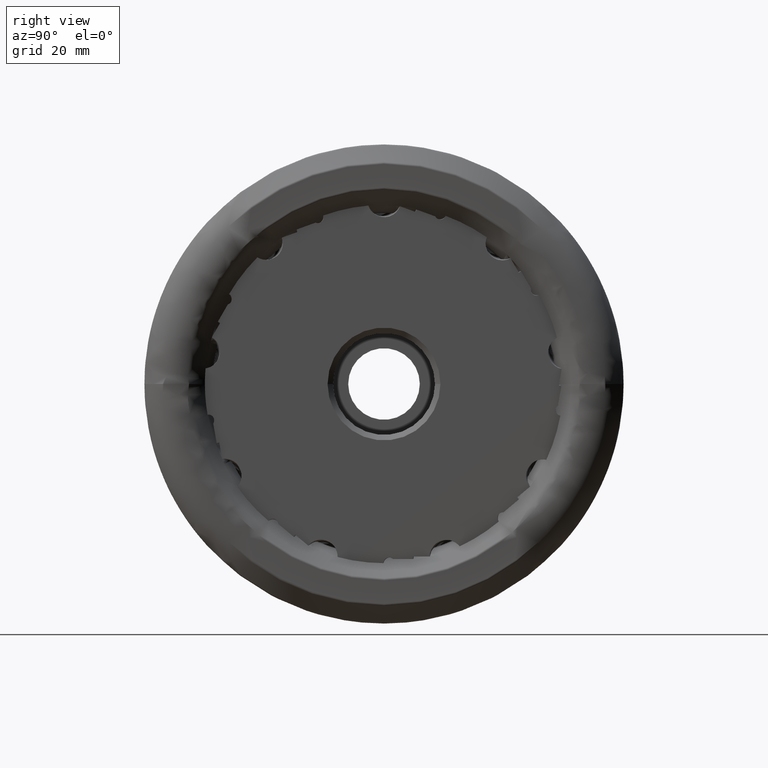
[diagram: clean part render]
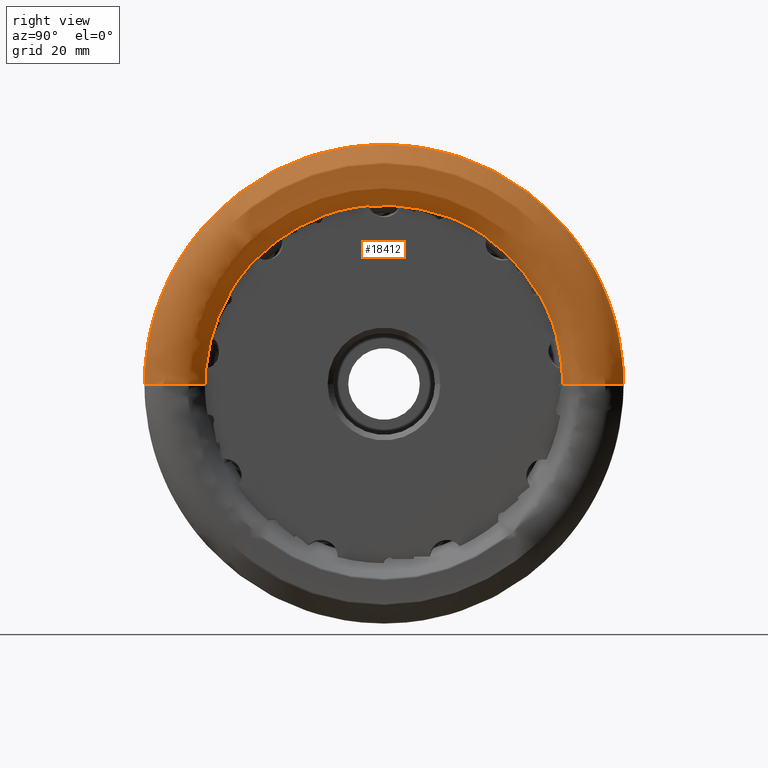
[diagram: same view with one face highlighted and labeled with its STEP entity id]
A machine part, right view. The second image highlights one B-rep face of the part: STEP entity #18412.
In plain terms, the highlighted face is a freeform B-spline surface patch.
Its self-contained STEP definition (entity closure, byte-faithful):
#58 = CARTESIAN_POINT ( 'NONE',  ( -0.3425565971943367300, -34.22765627130368700, 68.45531254260737300 ) ) ;
#119 = CARTESIAN_POINT ( 'NONE',  ( -1.999999999999984500, 28.20801936597163700, 16.20679299623406800 ) ) ;
#121 = CARTESIAN_POINT ( 'NONE',  ( 0.6273617613297940400, -35.18134563772342500, 4.308472232493469400E-015 ) ) ;
#183 = CARTESIAN_POINT ( 'NONE',  ( 0.7744025470913616900, 35.32856224612533700, 0.0000000000000000000 ) ) ;
#212 = CARTESIAN_POINT ( 'NONE',  ( -2.038731194971310100, 28.17095470113463300, 16.19074002391348400 ) ) ;
#236 = CARTESIAN_POINT ( 'NONE',  ( 0.6971025418866277900, -35.24027291815158200, 4.315688743029349700E-015 ) ) ;
#243 = CARTESIAN_POINT ( 'NONE',  ( 0.8748410095993783800, 35.50447672690388900, 71.00895345380777700 ) ) ;
#313 = CARTESIAN_POINT ( 'NONE',  ( 0.8902409107763181700, -35.88524155674949900, 4.394674620910285600E-015 ) ) ;
#319 = CARTESIAN_POINT ( 'NONE',  ( 0.8950534666787216500, -35.64549968031840900, 71.29099936063681800 ) ) ;
#345 = CARTESIAN_POINT ( 'NONE',  ( -2.089635244474794500, 31.33965276887315500, 8.374992956866142500 ) ) ;
#377 = CARTESIAN_POINT ( 'NONE',  ( 0.8622334513710749900, -40.14822626646228100, 4.916739678866672300E-015 ) ) ;
#383 = CARTESIAN_POINT ( 'NONE',  ( 0.8914007283192602000, -35.82530523205787200, 4.387334538091660500E-015 ) ) ;
#427 = CARTESIAN_POINT ( 'NONE',  ( -2.072742673859795400, -28.07916072246570800, 16.27921443983717600 ) ) ;
#438 = CARTESIAN_POINT ( 'NONE',  ( -2.110025155923067200, -43.19988429111771200, 5.290460002065333700E-015 ) ) ;
#441 = CARTESIAN_POINT ( 'NONE',  ( 0.8658913562654394500, 38.44419159169000000, 0.0000000000000000000 ) ) ;
#493 = CARTESIAN_POINT ( 'NONE',  ( -2.697354223220792800, -43.51506487925762200, 5.329058491907225200E-015 ) ) ;
#499 = CARTESIAN_POINT ( 'NONE',  ( 0.8913976264957274000, 39.79281486421245300, 79.58562972842490500 ) ) ;
#564 = CARTESIAN_POINT ( 'NONE',  ( 0.8950533737013487400, -39.97261854226231000, 79.94523708452462100 ) ) ;
#580 = CARTESIAN_POINT ( 'NONE',  ( -2.025809821165314600, -28.11775910616694300, 16.30966095891571800 ) ) ;
#617 = CARTESIAN_POINT ( 'NONE',  ( 0.8809929319947106300, -40.08978599666071600, 4.909582809931293300E-015 ) ) ;
#618 = CARTESIAN_POINT ( 'NONE',  ( -1.999999999999988000, -1.643265301445348600E-015, 0.0000000000000000000 ) ) ;
#671 = CARTESIAN_POINT ( 'NONE',  ( 0.7716495153471777400, 40.29295349552669600, 0.0000000000000000000 ) ) ;
#749 = CARTESIAN_POINT ( 'NONE',  ( 0.6965905795036246900, 40.37739374827624100, 80.75478749655246700 ) ) ;
#803 = CARTESIAN_POINT ( 'NONE',  ( 0.5626114132107819000, -40.50041419725702200, 81.00082839451404500 ) ) ;
#855 = CARTESIAN_POINT ( 'NONE',  ( -2.089635475235259900, -43.17872329128137900, 5.287868526993699900E-015 ) ) ;
#916 = CARTESIAN_POINT ( 'NONE',  ( -2.251095467296984500, 43.34972759883631700, 0.0000000000000000000 ) ) ;
#992 = CARTESIAN_POINT ( 'NONE',  ( -2.330384325982070700, 43.42032396826358100, 86.84064793652714800 ) ) ;
#1051 = CARTESIAN_POINT ( 'NONE',  ( -2.535585523551514300, -43.50393684313520700, 87.00787368627041500 ) ) ;
#1114 = CARTESIAN_POINT ( 'NONE',  ( -2.636894781143910300, -43.51090588646886200, 5.328549162186581600E-015 ) ) ;
#1163 = B_SPLINE_CURVE_WITH_KNOTS ( 'NONE', 3,
 ( #5781, #14474, #2915, #13079 ),
 .UNSPECIFIED., .F., .F.,
 ( 4, 4 ),
 ( 0.01081868763953014600, 0.01094905645055954000 ),
 .UNSPECIFIED. ) ;
#1180 = CARTESIAN_POINT ( 'NONE',  ( 0.8088077618842399700, 35.36785866382685800, 0.0000000000000000000 ) ) ;
#1185 = ORIENTED_EDGE ( 'NONE', *, *, #13041, .F. ) ;
#1186 = CARTESIAN_POINT ( 'NONE',  ( -2.879375407045864600, 43.50905910507066200, 0.0000000000000000000 ) ) ;
#1248 = CARTESIAN_POINT ( 'NONE',  ( 0.8896717424324739300, 39.70291102246406500, 0.0000000000000000000 ) ) ;
#1252 = CARTESIAN_POINT ( 'NONE',  ( -6.600182800473318100, 43.50905910507066900, 87.01811821014131000 ) ) ;
#1254 = CARTESIAN_POINT ( 'NONE',  ( -1.999999999999974500, -28.13950413160031500, 16.32546486325768600 ) ) ;
#1305 = CARTESIAN_POINT ( 'NONE',  ( 0.7569086806177236500, 40.30953672837306800, 0.0000000000000000000 ) ) ;
#1329 = CARTESIAN_POINT ( 'NONE',  ( -1.999999999999988000, -1.643265301445348600E-015, 0.0000000000000000000 ) ) ;
#1354 = CARTESIAN_POINT ( 'NONE',  ( -2.273042568966754800, 43.36926862544499500, 0.0000000000000000000 ) ) ;
#1424 = CARTESIAN_POINT ( 'NONE',  ( -4.119644538188351700, 43.50905910507066200, 0.0000000000000000000 ) ) ;
#1509 = CARTESIAN_POINT ( 'NONE',  ( 0.5626115288729876000, 35.11770401288064400, 0.0000000000000000000 ) ) ;
#1568 = ORIENTED_EDGE ( 'NONE', *, *, #14962, .F. ) ;
#1572 = CARTESIAN_POINT ( 'NONE',  ( 0.6971025418866194600, 35.24027291815158900, 70.48054583630316500 ) ) ;
#1641 = CARTESIAN_POINT ( 'NONE',  ( 0.7744025470913701300, -35.32856224612533000, 70.65712449225065900 ) ) ;
#1703 = CARTESIAN_POINT ( 'NONE',  ( 0.7569087880739295800, -35.30858149420567600, 4.324054130931245300E-015 ) ) ;
#1708 = CARTESIAN_POINT ( 'NONE',  ( 0.8748410095993868200, -35.50447672690388900, 4.348044377900454100E-015 ) ) ;
#1742 = CARTESIAN_POINT ( 'NONE',  ( -2.089635244474794500, 31.33965276887315500, 8.374992956866142500 ) ) ;
#1757 = CARTESIAN_POINT ( 'NONE',  ( 0.8658923428585633100, -37.17392750116473400, 4.552493132603715300E-015 ) ) ;
#1761 = CARTESIAN_POINT ( 'NONE',  ( 0.8965189022040472900, 35.67543760543051000, 0.0000000000000000000 ) ) ;
#1820 = CARTESIAN_POINT ( 'NONE',  ( 0.8007174062737574300, -40.26025252489405700, 4.930458938747564400E-015 ) ) ;
#1825 = CARTESIAN_POINT ( 'NONE',  ( 0.8902409107763096200, 35.88524155674950600, 71.77048311349898300 ) ) ;
#1890 = CARTESIAN_POINT ( 'NONE',  ( -2.207201263957437700, -43.31064554561897500, 5.304024343644784800E-015 ) ) ;
#1895 = CARTESIAN_POINT ( 'NONE',  ( 0.8658913562654483300, -38.44419159168999300, 76.88838318337998600 ) ) ;
#1943 = CARTESIAN_POINT ( 'NONE',  ( -2.849074246353296800, -43.50905910507066200, 5.328322996693779100E-015 ) ) ;
#1948 = CARTESIAN_POINT ( 'NONE',  ( 0.8913976264957367300, -39.79281486421245300, 4.873214335252100400E-015 ) ) ;
#2003 = CARTESIAN_POINT ( 'NONE',  ( 0.8942455312196737600, 39.99195400462953400, 0.0000000000000000000 ) ) ;
#2060 = CARTESIAN_POINT ( 'NONE',  ( 0.8622334513710655500, 40.14822626646227400, 80.29645253292454800 ) ) ;
#2062 = DIRECTION ( 'NONE',  ( -1.199768912937689300E-016, 1.000000000000000000, 0.0000000000000000000 ) ) ;
#2075 = VERTEX_POINT ( 'NONE', #13808 ) ;
#2102 = CARTESIAN_POINT ( 'NONE',  ( -2.038731194971308700, 11.17299622713306400, 30.51076706023307800 ) ) ;
#2129 = CARTESIAN_POINT ( 'NONE',  ( 0.7716495153471871800, -40.29295349552668200, 80.58590699105336300 ) ) ;
#2146 = CIRCLE ( 'NONE', #8287, 32.53233000837492700 ) ;
#2172 = VERTEX_POINT ( 'NONE', #11253 ) ;
#2188 = CARTESIAN_POINT ( 'NONE',  ( 0.6965905795036342300, -40.37739374827624100, 4.944804601173885100E-015 ) ) ;
#2249 = CARTESIAN_POINT ( 'NONE',  ( -0.3425567511056663000, 41.39046188606816700, 0.0000000000000000000 ) ) ;
#2273 = CARTESIAN_POINT ( 'NONE',  ( -1.999999999999986200, -11.06230423566089600, 30.59375623834855400 ) ) ;
#2317 = CARTESIAN_POINT ( 'NONE',  ( -2.110025155923077400, 43.19988429111771900, 86.39976858223542400 ) ) ;
#2382 = CARTESIAN_POINT ( 'NONE',  ( -2.251095467296973900, -43.34972759883630300, 86.69945519767262000 ) ) ;
#2395 = EDGE_CURVE ( 'NONE', #16055, #18662, #4927, .T. ) ;
#2415 = DIRECTION ( 'NONE',  ( 1.000000000000000000, 1.189832528889833900E-016, -0.0000000000000000000 ) ) ;
#2441 = CARTESIAN_POINT ( 'NONE',  ( -2.330384325982060000, -43.42032396826357400, 5.317456076567509400E-015 ) ) ;
#2501 = CARTESIAN_POINT ( 'NONE',  ( -2.583177188742688600, 43.50721066415531600, 0.0000000000000000000 ) ) ;
#2554 = VERTEX_POINT ( 'NONE', #6458 ) ;
#2575 = CARTESIAN_POINT ( 'NONE',  ( -2.089635244474799400, 32.43939491884978600, 0.0000000000000000000 ) ) ;
#2581 = CARTESIAN_POINT ( 'NONE',  ( -2.697354223220803400, 43.51506487925762200, 87.03012975851523000 ) ) ;
#2641 = CARTESIAN_POINT ( 'NONE',  ( 0.8748410095993783800, 35.50447672690388900, 0.0000000000000000000 ) ) ;
#2646 = CARTESIAN_POINT ( 'NONE',  ( -2.879375407045853900, -43.50905910507064800, 87.01811821014131000 ) ) ;
#2690 = CARTESIAN_POINT ( 'NONE',  ( 0.8913976264957272900, 39.79281486421245300, 0.0000000000000000000 ) ) ;
#2695 = CARTESIAN_POINT ( 'NONE',  ( -6.600182800473308300, -43.50905910507066200, 5.328322996693779100E-015 ) ) ;
#2724 = CARTESIAN_POINT ( 'NONE',  ( -2.059773777705824500, -2.813244645111443500, 32.34828660528005200 ) ) ;
#2759 = CARTESIAN_POINT ( 'NONE',  ( 0.6965905795036246900, 40.37739374827624100, 0.0000000000000000000 ) ) ;
#2787 = DIRECTION ( 'NONE',  ( -1.199768912937689300E-016, 1.000000000000000000, 0.0000000000000000000 ) ) ;
#2795 = CARTESIAN_POINT ( 'NONE',  ( -1.999999999999987600, -2.826588348131474400, 32.40930258558520200 ) ) ;
#2827 = CARTESIAN_POINT ( 'NONE',  ( -2.330384325982070200, 43.42032396826357400, 0.0000000000000000000 ) ) ;
#2879 = CARTESIAN_POINT ( 'NONE',  ( -6.600182800473320700, 43.50905910507066200, 0.0000000000000000000 ) ) ;
#2901 = CARTESIAN_POINT ( 'NONE',  ( -2.089635244474799900, 32.43939491884978600, 64.87878983769955700 ) ) ;
#2915 = CARTESIAN_POINT ( 'NONE',  ( -2.029895201833703800, -32.37659354296275900, 2.845153299718984600 ) ) ;
#2963 = CARTESIAN_POINT ( 'NONE',  ( 0.5626115288729959300, -35.11770401288063000, 70.23540802576125900 ) ) ;
#2969 = ORIENTED_EDGE ( 'NONE', *, *, #16468, .F. ) ;
#3040 = CARTESIAN_POINT ( 'NONE',  ( 0.6971025418866277900, -35.24027291815158200, 4.315688743029349700E-015 ) ) ;
#3098 = CARTESIAN_POINT ( 'NONE',  ( 0.8088077618842399700, 35.36785866382685800, 0.0000000000000000000 ) ) ;
#3121 = AXIS2_PLACEMENT_3D ( 'NONE', #5217, #15377, #6676 ) ;
#3155 = CARTESIAN_POINT ( 'NONE',  ( 0.8088077618842484100, -35.36785866382685800, 4.331313490535154500E-015 ) ) ;
#3159 = CARTESIAN_POINT ( 'NONE',  ( 0.8916085622985010500, 35.57512245281837700, 71.15024490563675400 ) ) ;
#3221 = CARTESIAN_POINT ( 'NONE',  ( 0.8896717424324833700, -39.70291102246406500, 4.862204290049278600E-015 ) ) ;
#3222 = ORIENTED_EDGE ( 'NONE', *, *, #7003, .F. ) ;
#3226 = CARTESIAN_POINT ( 'NONE',  ( 0.8965189022040557200, -35.67543760543050300, 71.35087521086100500 ) ) ;
#3255 = B_SPLINE_CURVE_WITH_KNOTS ( 'NONE', 3,
 ( #8508, #4113, #18555, #18617 ),
 .UNSPECIFIED., .F., .F.,
 ( 4, 4 ),
 ( 0.01081868763953015700, 0.01094905645055954500 ),
 .UNSPECIFIED. ) ;
#3284 = CARTESIAN_POINT ( 'NONE',  ( 0.7569086806177332000, -40.30953672837306800, 4.936494512951475600E-015 ) ) ;
#3290 = CARTESIAN_POINT ( 'NONE',  ( 0.8902409107763181700, -35.88524155674949900, 4.394674620910285600E-015 ) ) ;
#3325 = CIRCLE ( 'NONE', #18196, 32.43939491884978600 ) ;
#3338 = CARTESIAN_POINT ( 'NONE',  ( -2.273042568966744200, -43.36926862544499500, 5.311203600351294100E-015 ) ) ;
#3340 = CARTESIAN_POINT ( 'NONE',  ( 0.8896717424324739300, 39.70291102246406500, 0.0000000000000000000 ) ) ;
#3393 = CARTESIAN_POINT ( 'NONE',  ( -4.119644538188342000, -43.50905910507066200, 5.328322996693779100E-015 ) ) ;
#3399 = CARTESIAN_POINT ( 'NONE',  ( 0.8988070052786658600, 39.88277652014653500, 79.76555304029305700 ) ) ;
#3466 = CARTESIAN_POINT ( 'NONE',  ( 0.8942455312196834200, -39.99195400462952700, 79.98390800925905400 ) ) ;
#3528 = CARTESIAN_POINT ( 'NONE',  ( 0.8622334513710749900, -40.14822626646228100, 4.916739678866672300E-015 ) ) ;
#3563 = CARTESIAN_POINT ( 'NONE',  ( -2.012899418102992700, 11.18530733413676800, 30.53477084256406800 ) ) ;
#3587 = CARTESIAN_POINT ( 'NONE',  ( 0.7569086806177236500, 40.30953672837306800, 0.0000000000000000000 ) ) ;
#3643 = CARTESIAN_POINT ( 'NONE',  ( 0.6273616482469588400, 40.43677257640089100, 80.87354515280176800 ) ) ;
#3710 = CIRCLE ( 'NONE', #4902, 43.50905910507066200 ) ;
#3715 = CARTESIAN_POINT ( 'NONE',  ( -0.3425567511056563100, -41.39046188606816700, 82.78092377213633300 ) ) ;
#3743 = CARTESIAN_POINT ( 'NONE',  ( -2.055722841929558300, 28.15450983816364800, 16.18400302611467000 ) ) ;
#3770 = CARTESIAN_POINT ( 'NONE',  ( -2.110025155923067200, -43.19988429111771200, 5.290460002065333700E-015 ) ) ;
#3822 = CARTESIAN_POINT ( 'NONE',  ( -2.273042568966754800, 43.36926862544499500, 0.0000000000000000000 ) ) ;
#3897 = ORIENTED_EDGE ( 'NONE', *, *, #14168, .T. ) ;
#3900 = CARTESIAN_POINT ( 'NONE',  ( -2.396302976578862200, 43.45871664776806400, 86.91743329553611400 ) ) ;
#3903 = CARTESIAN_POINT ( 'NONE',  ( -1.999999999999984000, -32.40776437167052400, 2.844170213629036300 ) ) ;
#3970 = CARTESIAN_POINT ( 'NONE',  ( -2.583177188742678000, -43.50721066415530200, 87.01442132831061800 ) ) ;
#4031 = CARTESIAN_POINT ( 'NONE',  ( -2.697354223220792800, -43.51506487925762200, 5.329058491907225200E-015 ) ) ;
#4064 = VERTEX_POINT ( 'NONE', #1254 ) ;
#4085 = CARTESIAN_POINT ( 'NONE',  ( 0.8939151162407538200, 35.62224389760139300, 0.0000000000000000000 ) ) ;
#4090 = CARTESIAN_POINT ( 'NONE',  ( -4.119644538188350000, 43.50905910507066200, 0.0000000000000000000 ) ) ;
#4113 = CARTESIAN_POINT ( 'NONE',  ( -2.059773777705826300, 18.63800739694125500, 26.58854399928947000 ) ) ;
#4161 = CARTESIAN_POINT ( 'NONE',  ( 0.8963045842271156700, 39.94267120155706200, 0.0000000000000000000 ) ) ;
#4191 = CARTESIAN_POINT ( 'NONE',  ( -2.089635244474797200, 11.14689726363033600, 30.46409401402194600 ) ) ;
#4225 = CARTESIAN_POINT ( 'NONE',  ( 0.5841903276673668900, 40.47919575001563400, 0.0000000000000000000 ) ) ;
#4276 = CARTESIAN_POINT ( 'NONE',  ( -2.465053625587843500, 43.48641242322762000, 0.0000000000000000000 ) ) ;
#4365 = CARTESIAN_POINT ( 'NONE',  ( -2.089635244474791900, -32.43939491884978600, 3.972680115364630900E-015 ) ) ;
#4368 = DIRECTION ( 'NONE',  ( 1.000000000000000000, 1.189832528889833900E-016, -0.0000000000000000000 ) ) ;
#4426 = CARTESIAN_POINT ( 'NONE',  ( 0.5841904424794434100, 35.13892246144063600, 0.0000000000000000000 ) ) ;
#4483 = CARTESIAN_POINT ( 'NONE',  ( 0.7369733726781529900, 35.28581196885431100, 70.57162393770862300 ) ) ;
#4545 = CARTESIAN_POINT ( 'NONE',  ( 0.8088077618842483000, -35.36785866382685100, 70.73571732765370300 ) ) ;
#4620 = CARTESIAN_POINT ( 'NONE',  ( 0.8748410095993868200, -35.50447672690388900, 4.348044377900454100E-015 ) ) ;
#4628 = CARTESIAN_POINT ( 'NONE',  ( 0.8916085622985093800, -35.57512245281838400, 4.356695984111916900E-015 ) ) ;
#4688 = CARTESIAN_POINT ( 'NONE',  ( 0.8913976264957367300, -39.79281486421245300, 4.873214335252100400E-015 ) ) ;
#4692 = CARTESIAN_POINT ( 'NONE',  ( 0.8994497732547102100, 35.73531345565470500, 0.0000000000000000000 ) ) ;
#4719 = CARTESIAN_POINT ( 'NONE',  ( -2.029895201833721500, 31.39714577786021400, 8.399877603210233800 ) ) ;
#4746 = CARTESIAN_POINT ( 'NONE',  ( 0.6965905795036342300, -40.37739374827624100, 4.944804601173885100E-015 ) ) ;
#4749 = CARTESIAN_POINT ( 'NONE',  ( -1.999999999999986200, -11.06230423566089600, 30.59375623834855400 ) ) ;
#4750 = CARTESIAN_POINT ( 'NONE',  ( 0.8896746842772447200, 35.91520997760959900, 71.83041995521918500 ) ) ;
#4789 = CARTESIAN_POINT ( 'NONE',  ( -2.038731194971316300, -28.10706951734593400, 16.30139240808638900 ) ) ;
#4806 = CARTESIAN_POINT ( 'NONE',  ( -2.330384325982060000, -43.42032396826357400, 5.317456076567509400E-015 ) ) ;
#4812 = CARTESIAN_POINT ( 'NONE',  ( 0.8896717424324834800, -39.70291102246405800, 79.40582204492811500 ) ) ;
#4828 = CARTESIAN_POINT ( 'NONE',  ( -2.089635244474794100, -11.04292346571706700, 30.50193738160598400 ) ) ;
#4847 = ORIENTED_EDGE ( 'NONE', *, *, #10355, .F. ) ;
#4875 = CARTESIAN_POINT ( 'NONE',  ( -6.600182800473310100, -43.50905910507066200, 5.328322996692986200E-015 ) ) ;
#4880 = CARTESIAN_POINT ( 'NONE',  ( 0.8988070052786753000, -39.88277652014653500, 4.884231460650667300E-015 ) ) ;
#4902 = AXIS2_PLACEMENT_3D ( 'NONE', #13062, #4368, #14516 ) ;
#4927 =( BOUNDED_CURVE ( )  B_SPLINE_CURVE ( 3, ( #16158, #5943, #8870, #7464, #17615, #8947, #236, #10414, #1703, #11861, #3155, #13305, #4620, #14758, #6068, #16230, #7536, #17673, #9005, #313, #10468, #1757, #11929, #3221, #13351, #4688, #14838, #6128, #16283, #7607, #17735, #9059, #377, #10545, #1820, #11990, #3284, #13420, #4746, #14900, #6202, #16342, #7664, #17807, #9117, #438, #10608, #1890, #12044, #3338, #13495, #4806, #14951, #6262, #16412, #7719, #17869, #9187, #493, #10654, #1943, #12111, #3393, #13547, #4875 ),
 .UNSPECIFIED., .F., .F. ) 
 B_SPLINE_CURVE_WITH_KNOTS ( ( 4, 3, 1, 1, 3, 1, 1, 1, 1, 3, 1, 1, 3, 3, 1, 1, 3, 1, 1, 1, 1, 1, 3, 1, 1, 3, 3, 1, 1, 3, 1, 1, 1, 1, 3, 1, 1, 3, 4 ),
 ( 0.003710546787526763700, 0.1060619786133414300, 0.1086058762416542000, 0.1111497738699669500, 0.1136936714982797200, 0.1159259967943046700, 0.1180840161475199800, 0.1201745223561953200, 0.1222049872324844100, 0.1241835642292966100, 0.1267306507187038700, 0.1292777372081111400, 0.1318248236975184100, 0.2381579369554293300, 0.2407049939784723600, 0.2432520510015154000, 0.2457991080245584300, 0.2474436121460063500, 0.2491231706691761900, 0.2508425962174883300, 0.2526063746967598400, 0.2544186622806928200, 0.2562832903933666100, 0.2588265843362282400, 0.2613698782790899200, 0.2639131722219515400, 0.3699499818578342900, 0.3724863861298187700, 0.3750227904018033100, 0.3775591946737877900, 0.3797929535507995100, 0.3819523644748831800, 0.3840442238925341200, 0.3860760075735312800, 0.3880558732360107600, 0.3906040303570157400, 0.3931521874780206600, 0.3957003445990256400, 0.5000000000000001100 ),
 .UNSPECIFIED. ) 
 CURVE ( )  GEOMETRIC_REPRESENTATION_ITEM ( )  RATIONAL_B_SPLINE_CURVE ( ( 0.9993862869339624800, 0.9939479869151270900, 0.9941525579371396400, 1.000000000000000000, 1.000000000000000000, 1.000000000000000000, 1.000000000000000000, 1.000000000000000000, 1.000000000000000000, 1.000000000000000000, 1.000000000000000000, 1.000000000000000000, 1.000000000000000000, 1.000000000000000000, 1.000000000000000000, 1.000000000000000000, 1.000000000000000000, 1.000000000000000000, 1.000000000000000000, 1.000000000000000000, 1.000000000000000000, 0.9939405706016597500, 0.9939405706016597500, 1.000000000000000000, 1.000000000000000000, 1.000000000000000000, 1.000000000000000000, 1.000000000000000000, 1.000000000000000000, 1.000000000000000000, 1.000000000000000000, 1.000000000000000000, 1.000000000000000000, 1.000000000000000000, 1.000000000000000000, 1.000000000000000000, 1.000000000000000000, 1.000000000000000000, 1.000000000000000000, 1.000000000000000000, 1.000000000000000000, 1.000000000000000000, 0.9939405706012081100, 0.9939405706012081100, 1.000000000000000000, 1.000000000000000000, 1.000000000000000000, 1.000000000000000000, 1.000000000000000000, 1.000000000000000000, 1.000000000000000000, 1.000000000000000000, 1.000000000000000000, 1.000000000000000000, 1.000000000000000000, 1.000000000000000000, 1.000000000000000000, 1.000000000000000000, 1.000000000000000000, 1.000000000000000000, 1.000000000000000000, 1.000000000000000000, 1.000000000000000000, 1.000000000000000000, 1.000000000000000000 ) ) 
 REPRESENTATION_ITEM ( '' )  );
#4931 = CARTESIAN_POINT ( 'NONE',  ( 0.8926126262113982500, 40.03103708586542100, 0.0000000000000000000 ) ) ;
#4983 = CARTESIAN_POINT ( 'NONE',  ( 0.8352750921835769800, 40.20524495306236900, 80.41048990612471000 ) ) ;
#5049 = ORIENTED_EDGE ( 'NONE', *, *, #8261, .T. ) ;
#5059 = CARTESIAN_POINT ( 'NONE',  ( 0.7569086806177332000, -40.30953672837306100, 80.61907345674612200 ) ) ;
#5114 = CARTESIAN_POINT ( 'NONE',  ( -2.089635244474795900, -1.653930394406460400E-015, 0.0000000000000000000 ) ) ;
#5121 = CARTESIAN_POINT ( 'NONE',  ( 0.6273616482469685000, -40.43677257640089800, 4.952076410353882700E-015 ) ) ;
#5171 = CARTESIAN_POINT ( 'NONE',  ( -1.232028739973092300, 42.28867423841042200, 0.0000000000000000000 ) ) ;
#5217 = CARTESIAN_POINT ( 'NONE',  ( -1.999999999999988000, -1.643265301445348600E-015, 0.0000000000000000000 ) ) ;
#5231 = CARTESIAN_POINT ( 'NONE',  ( -2.150790362202490400, 43.24221992993285800, 86.48443985986570200 ) ) ;
#5286 = VERTEX_POINT ( 'NONE', #16952 ) ;
#5306 = CARTESIAN_POINT ( 'NONE',  ( -2.273042568966744200, -43.36926862544498800, 86.73853725088997600 ) ) ;
#5351 = CARTESIAN_POINT ( 'NONE',  ( -2.089635244474795900, -1.653930394406460400E-015, 0.0000000000000000000 ) ) ;
#5363 = CARTESIAN_POINT ( 'NONE',  ( -2.396302976578851500, -43.45871664776806400, 5.322157823774095200E-015 ) ) ;
#5365 = CARTESIAN_POINT ( 'NONE',  ( -2.089635244474792800, 18.62422514898794600, 26.56035730747802900 ) ) ;
#5407 = CIRCLE ( 'NONE', #7983, 32.43939491884978600 ) ;
#5422 = CARTESIAN_POINT ( 'NONE',  ( -2.606665060105479300, 43.50882639007447500, 0.0000000000000000000 ) ) ;
#5461 = B_SPLINE_CURVE_WITH_KNOTS ( 'NONE', 3,
 ( #12903, #5654, #8586, #18711 ),
 .UNSPECIFIED., .F., .F.,
 ( 4, 4 ),
 ( 0.01081868763953010300, 0.01094905645055949100 ),
 .UNSPECIFIED. ) ;
#5491 = CARTESIAN_POINT ( 'NONE',  ( 0.5626115288729876000, 35.11770401288064400, 0.0000000000000000000 ) ) ;
#5496 = CARTESIAN_POINT ( 'NONE',  ( -2.788471924968190900, 43.50905910507066900, 87.01811821014131000 ) ) ;
#5556 = CARTESIAN_POINT ( 'NONE',  ( 0.8965189022040472900, 35.67543760543051000, 0.0000000000000000000 ) ) ;
#5561 = CARTESIAN_POINT ( 'NONE',  ( -4.119644538188340200, -43.50905910507064800, 87.01811821014131000 ) ) ;
#5610 = CARTESIAN_POINT ( 'NONE',  ( 0.8942455312196737600, 39.99195400462953400, 0.0000000000000000000 ) ) ;
#5635 = CARTESIAN_POINT ( 'NONE',  ( -2.055722841929547700, 11.16472918994784200, 30.49503566634526000 ) ) ;
#5646 = EDGE_CURVE ( 'NONE', #2172, #2075, #7948, .T. ) ;
#5654 = CARTESIAN_POINT ( 'NONE',  ( -2.059773777705821800, -22.94814825198495000, 22.97190639750017400 ) ) ;
#5666 = CARTESIAN_POINT ( 'NONE',  ( -0.3425567511056662500, 41.39046188606817400, 0.0000000000000000000 ) ) ;
#5731 = CARTESIAN_POINT ( 'NONE',  ( -2.583177188742688600, 43.50721066415531600, 0.0000000000000000000 ) ) ;
#5755 = EDGE_CURVE ( 'NONE', #13189, #18795, #2146, .T. ) ;
#5764 = CARTESIAN_POINT ( 'NONE',  ( -6.600182800473320700, 43.50905910507066200, 0.0000000000000000000 ) ) ;
#5781 = CARTESIAN_POINT ( 'NONE',  ( -2.089635244474786500, -32.31405673636161400, 2.848873451085415000 ) ) ;
#5817 = CARTESIAN_POINT ( 'NONE',  ( -1.232028547461792900, 33.32944391895925700, 66.65888783791849900 ) ) ;
#5876 = CARTESIAN_POINT ( 'NONE',  ( 0.5841904424794518400, -35.13892246144063600, 70.27784492288127200 ) ) ;
#5943 = CARTESIAN_POINT ( 'NONE',  ( -1.169760586863880500, -33.39229418442511100, 4.089376618914298600E-015 ) ) ;
#5950 = CARTESIAN_POINT ( 'NONE',  ( 0.7369733726781612100, -35.28581196885431800, 4.321265668297280100E-015 ) ) ;
#6013 = CARTESIAN_POINT ( 'NONE',  ( 0.8474201272238314200, 35.43504103711789800, 0.0000000000000000000 ) ) ;
#6058 = CARTESIAN_POINT ( 'NONE',  ( -2.089635244474797200, 11.14689726363033600, 30.46409401402194600 ) ) ;
#6068 = CARTESIAN_POINT ( 'NONE',  ( 0.8939151162407622500, -35.62224389760139300, 4.362466696764388300E-015 ) ) ;
#6071 = CARTESIAN_POINT ( 'NONE',  ( 0.8939151162407538200, 35.62224389760139300, 71.24448779520277200 ) ) ;
#6128 = CARTESIAN_POINT ( 'NONE',  ( 0.8963045842271252200, -39.94267120155706200, 4.891566443638201800E-015 ) ) ;
#6134 = CARTESIAN_POINT ( 'NONE',  ( 0.8994497732547187500, -35.73531345565470500, 71.47062691130940900 ) ) ;
#6202 = CARTESIAN_POINT ( 'NONE',  ( 0.5841903276673765500, -40.47919575001563400, 4.957271750731579200E-015 ) ) ;
#6207 = CARTESIAN_POINT ( 'NONE',  ( 0.8896746842772533800, -35.91520997760959900, 4.398344693978468100E-015 ) ) ;
#6262 = CARTESIAN_POINT ( 'NONE',  ( -2.465053625587832800, -43.48641242322762000, 5.325549578050740500E-015 ) ) ;
#6264 = CARTESIAN_POINT ( 'NONE',  ( 0.8902379158296092100, 39.73287914203772400, 0.0000000000000000000 ) ) ;
#6317 = CARTESIAN_POINT ( 'NONE',  ( 0.8963045842271156700, 39.94267120155706200, 79.88534240311410900 ) ) ;
#6370 = CARTESIAN_POINT ( 'NONE',  ( 0.8926126262114078000, -40.03103708586540700, 80.06207417173081400 ) ) ;
#6374 = CARTESIAN_POINT ( 'NONE',  ( -1.999999999999988000, -1.643265301445348600E-015, 0.0000000000000000000 ) ) ;
#6375 = EDGE_CURVE ( 'NONE', #7136, #13924, #3255, .T. ) ;
#6378 = VERTEX_POINT ( 'NONE', #11442 ) ;
#6397 = CARTESIAN_POINT ( 'NONE',  ( -2.038731194971316300, -28.10706951734593400, 16.30139240808638900 ) ) ;
#6444 = CARTESIAN_POINT ( 'NONE',  ( 0.8352750921835865300, -40.20524495306236900, 4.923722454070309900E-015 ) ) ;
#6458 = CARTESIAN_POINT ( 'NONE',  ( -1.999999999999991800, 31.42610054033530200, 8.411462453256811900 ) ) ;
#6502 = CARTESIAN_POINT ( 'NONE',  ( 0.7368026469130271000, 40.33215573500746800, 0.0000000000000000000 ) ) ;
#6530 = CARTESIAN_POINT ( 'NONE',  ( -2.089635244474795900, -1.653930394406460400E-015, 0.0000000000000000000 ) ) ;
#6553 = DIRECTION ( 'NONE',  ( -1.203206111184212700E-016, 1.000000000000000000, 0.0000000000000000000 ) ) ;
#6557 = CARTESIAN_POINT ( 'NONE',  ( 0.5841903276673670000, 40.47919575001563400, 80.95839150003125400 ) ) ;
#6586 = CARTESIAN_POINT ( 'NONE',  ( -2.072742673859799800, 28.13779361978638600, 16.17765928268279300 ) ) ;
#6609 = EDGE_CURVE ( 'NONE', #17122, #4064, #13863, .T. ) ;
#6622 = CARTESIAN_POINT ( 'NONE',  ( -1.232028739973082500, -42.28867423841042200, 84.57734847682084500 ) ) ;
#6634 = ORIENTED_EDGE ( 'NONE', *, *, #16704, .T. ) ;
#6676 = DIRECTION ( 'NONE',  ( -1.199768912937689300E-016, 1.000000000000000000, 0.0000000000000000000 ) ) ;
#6690 = CARTESIAN_POINT ( 'NONE',  ( -2.150790362202479800, -43.24221992993285800, 5.295644622521815700E-015 ) ) ;
#6746 = CARTESIAN_POINT ( 'NONE',  ( -2.292370928298515900, 43.38647800414506900, 0.0000000000000000000 ) ) ;
#6791 = DIRECTION ( 'NONE',  ( -1.203206111184212700E-016, 1.000000000000000000, 0.0000000000000000000 ) ) ;
#6805 = CARTESIAN_POINT ( 'NONE',  ( -2.465053625587843000, 43.48641242322762000, 86.97282484645522500 ) ) ;
#6821 = EDGE_CURVE ( 'NONE', #18410, #18662, #3710, .T. ) ;
#6886 = CARTESIAN_POINT ( 'NONE',  ( -2.606665060105469100, -43.50882639007446100, 87.01765278014893600 ) ) ;
#6905 = B_SPLINE_CURVE_WITH_KNOTS ( 'NONE', 3,
 ( #4828, #13511, #16427, #7735 ),
 .UNSPECIFIED., .F., .F.,
 ( 4, 4 ),
 ( 0.002827040793772204100, 0.002900448247621865600 ),
 .UNSPECIFIED. ) ;
#6953 = CARTESIAN_POINT ( 'NONE',  ( 0.6273617613297857200, 35.18134563772342500, 0.0000000000000000000 ) ) ;
#6957 = CARTESIAN_POINT ( 'NONE',  ( -2.788471924968180600, -43.50905910507066200, 5.328322996693779100E-015 ) ) ;
#7003 = EDGE_CURVE ( 'NONE', #2554, #13257, #9818, .T. ) ;
#7011 = CARTESIAN_POINT ( 'NONE',  ( 0.8914007283192516600, 35.82530523205787200, 0.0000000000000000000 ) ) ;
#7016 = CARTESIAN_POINT ( 'NONE',  ( -5.359913669330834000, 43.50905910507066200, 0.0000000000000000000 ) ) ;
#7033 = B_SPLINE_CURVE_WITH_KNOTS ( 'NONE', 3,
 ( #13115, #16033, #8808, #119 ),
 .UNSPECIFIED., .F., .F.,
 ( 4, 4 ),
 ( 0.002900448247621917700, 0.002956271273704582300 ),
 .UNSPECIFIED. ) ;
#7073 = CARTESIAN_POINT ( 'NONE',  ( 0.8809929319947010800, 40.08978599666071600, 0.0000000000000000000 ) ) ;
#7127 = VERTEX_POINT ( 'NONE', #3903 ) ;
#7136 = VERTEX_POINT ( 'NONE', #5365 ) ;
#7139 = CARTESIAN_POINT ( 'NONE',  ( -2.089635475235270200, 43.17872329128137900, 0.0000000000000000000 ) ) ;
#7194 = CARTESIAN_POINT ( 'NONE',  ( -2.636894781143920500, 43.51090588646886200, 0.0000000000000000000 ) ) ;
#7218 = CARTESIAN_POINT ( 'NONE',  ( -2.089635244474799400, 32.43939491884978600, 0.0000000000000000000 ) ) ;
#7281 = CARTESIAN_POINT ( 'NONE',  ( -1.232028547461784900, -33.32944391895925700, 4.081679681271467600E-015 ) ) ;
#7352 = CARTESIAN_POINT ( 'NONE',  ( 0.6273617613297857200, 35.18134563772342500, 0.0000000000000000000 ) ) ;
#7412 = CARTESIAN_POINT ( 'NONE',  ( 0.7569087880739212600, 35.30858149420567600, 70.61716298841133700 ) ) ;
#7448 = CARTESIAN_POINT ( 'NONE',  ( -2.089635244474795900, -1.653930394406460400E-015, 0.0000000000000000000 ) ) ;
#7464 = CARTESIAN_POINT ( 'NONE',  ( 0.5626115288729959300, -35.11770401288064400, 4.300678381277844000E-015 ) ) ;
#7470 = CARTESIAN_POINT ( 'NONE',  ( 0.8474201272238399700, -35.43504103711789100, 70.87008207423578200 ) ) ;
#7536 = CARTESIAN_POINT ( 'NONE',  ( 0.8965189022040557200, -35.67543760543051000, 4.368981047167158700E-015 ) ) ;
#7542 = CARTESIAN_POINT ( 'NONE',  ( 0.8939151162407622500, -35.62224389760139300, 4.362466696764388300E-015 ) ) ;
#7607 = CARTESIAN_POINT ( 'NONE',  ( 0.8942455312196833100, -39.99195400462953400, 4.897601846341773700E-015 ) ) ;
#7610 = CARTESIAN_POINT ( 'NONE',  ( -2.038731194971305600, -11.05293135556547500, 30.55446709966467700 ) ) ;
#7612 = CARTESIAN_POINT ( 'NONE',  ( 0.8914007283192516600, 35.82530523205787200, 0.0000000000000000000 ) ) ;
#7664 = CARTESIAN_POINT ( 'NONE',  ( -0.3425567511056564200, -41.39046188606817400, 5.068869666400390500E-015 ) ) ;
#7667 = CARTESIAN_POINT ( 'NONE',  ( 0.8658923428585544300, 37.17392750116473400, 74.34785500232943900 ) ) ;
#7693 = CARTESIAN_POINT ( 'NONE',  ( -2.089635244474795900, -1.653930394406460400E-015, 0.0000000000000000000 ) ) ;
#7719 = CARTESIAN_POINT ( 'NONE',  ( -2.583177188742678000, -43.50721066415531600, 5.328096627968739700E-015 ) ) ;
#7725 = CARTESIAN_POINT ( 'NONE',  ( 0.8902379158296187500, -39.73287914203772400, 79.46575828407544900 ) ) ;
#7735 = CARTESIAN_POINT ( 'NONE',  ( -2.038731194971305600, -11.05293135556547500, 30.55446709966467700 ) ) ;
#7798 = CARTESIAN_POINT ( 'NONE',  ( 0.8963045842271252200, -39.94267120155706200, 4.891566443638201800E-015 ) ) ;
#7827 = EDGE_CURVE ( 'NONE', #13924, #2075, #17502, .T. ) ;
#7851 = CARTESIAN_POINT ( 'NONE',  ( 0.8809929319947010800, 40.08978599666071600, 0.0000000000000000000 ) ) ;
#7855 = DIRECTION ( 'NONE',  ( -1.199768912937689300E-016, 1.000000000000000000, 0.0000000000000000000 ) ) ;
#7873 = CARTESIAN_POINT ( 'NONE',  ( -2.012899418102982000, -28.12857082699087400, 16.31768469477068700 ) ) ;
#7908 = CARTESIAN_POINT ( 'NONE',  ( 0.8007174062737478800, 40.26025252489405700, 80.52050504978808500 ) ) ;
#7948 = B_SPLINE_CURVE_WITH_KNOTS ( 'NONE', 3,
 ( #2102, #9345, #3563, #13711 ),
 .UNSPECIFIED., .F., .F.,
 ( 4, 4 ),
 ( 0.002900448247621838700, 0.002956271273704494300 ),
 .UNSPECIFIED. ) ;
#7970 = CARTESIAN_POINT ( 'NONE',  ( 0.7368026469130367600, -40.33215573500746100, 80.66431147001492300 ) ) ;
#7983 = AXIS2_PLACEMENT_3D ( 'NONE', #5351, #15504, #6791 ) ;
#8013 = DIRECTION ( 'NONE',  ( -1.203206111184212700E-016, 1.000000000000000000, 0.0000000000000000000 ) ) ;
#8038 = CARTESIAN_POINT ( 'NONE',  ( 0.5841903276673765500, -40.47919575001563400, 4.957271750731579200E-015 ) ) ;
#8098 = CARTESIAN_POINT ( 'NONE',  ( -2.089635475235270200, 43.17872329128137900, 0.0000000000000000000 ) ) ;
#8151 = CARTESIAN_POINT ( 'NONE',  ( -2.089635244474786500, -32.31405673636161400, 2.848873451085415000 ) ) ;
#8156 = CARTESIAN_POINT ( 'NONE',  ( -2.207201263957448300, 43.31064554561897500, 86.62129109123795000 ) ) ;
#8166 = EDGE_CURVE ( 'NONE', #12121, #8925, #14323, .T. ) ;
#8225 = CARTESIAN_POINT ( 'NONE',  ( -2.292370928298505600, -43.38647800414505400, 86.77295600829012300 ) ) ;
#8261 = EDGE_CURVE ( 'NONE', #17301, #17122, #11015, .T. ) ;
#8287 = AXIS2_PLACEMENT_3D ( 'NONE', #11137, #2415, #12567 ) ;
#8294 = CARTESIAN_POINT ( 'NONE',  ( -2.465053625587832800, -43.48641242322762000, 5.325549578050740500E-015 ) ) ;
#8317 = AXIS2_PLACEMENT_3D ( 'NONE', #7448, #17601, #8931 ) ;
#8357 = CARTESIAN_POINT ( 'NONE',  ( -2.636894781143920500, 43.51090588646886200, 0.0000000000000000000 ) ) ;
#8410 = CARTESIAN_POINT ( 'NONE',  ( 0.7369733726781528800, 35.28581196885431800, 0.0000000000000000000 ) ) ;
#8413 = CARTESIAN_POINT ( 'NONE',  ( -2.849074246353307400, 43.50905910507066900, 87.01811821014131000 ) ) ;
#8484 = CARTESIAN_POINT ( 'NONE',  ( 0.8896746842772448300, 35.91520997760959900, 0.0000000000000000000 ) ) ;
#8490 = CARTESIAN_POINT ( 'NONE',  ( -5.359913669330823400, -43.50905910507064800, 87.01811821014131000 ) ) ;
#8508 = CARTESIAN_POINT ( 'NONE',  ( -2.089635244474792800, 18.62422514898794600, 26.56035730747802900 ) ) ;
#8542 = CARTESIAN_POINT ( 'NONE',  ( 0.8352750921835769800, 40.20524495306236900, 0.0000000000000000000 ) ) ;
#8586 = CARTESIAN_POINT ( 'NONE',  ( -2.029895201833713100, -22.97308028199021400, 22.99078704834505500 ) ) ;
#8593 = CARTESIAN_POINT ( 'NONE',  ( -2.150790362202490400, 43.24221992993285800, 0.0000000000000000000 ) ) ;
#8656 = CARTESIAN_POINT ( 'NONE',  ( -2.788471924968190900, 43.50905910507066200, 0.0000000000000000000 ) ) ;
#8751 = CARTESIAN_POINT ( 'NONE',  ( -0.3425565971943449500, 34.22765627130369400, 68.45531254260737300 ) ) ;
#8808 = CARTESIAN_POINT ( 'NONE',  ( -2.012899418102995300, 28.19581489011144600, 16.20121456093847100 ) ) ;
#8809 = CARTESIAN_POINT ( 'NONE',  ( 0.6273617613297940400, -35.18134563772341700, 70.36269127544683500 ) ) ;
#8870 = CARTESIAN_POINT ( 'NONE',  ( -0.3107032991126766300, -34.25897747584338800, 4.195514710785286700E-015 ) ) ;
#8877 = CARTESIAN_POINT ( 'NONE',  ( 0.7569087880739295800, -35.30858149420567600, 4.324054130931245300E-015 ) ) ;
#8882 = ORIENTED_EDGE ( 'NONE', *, *, #10409, .T. ) ;
#8886 = VERTEX_POINT ( 'NONE', #8151 ) ;
#8918 = B_SPLINE_CURVE_WITH_KNOTS ( 'NONE', 3,
 ( #4191, #12887, #5635, #15806 ),
 .UNSPECIFIED., .F., .F.,
 ( 4, 4 ),
 ( 0.002827040793772184100, 0.002900448247621838700 ),
 .UNSPECIFIED. ) ;
#8925 = VERTEX_POINT ( 'NONE', #18472 ) ;
#8931 = DIRECTION ( 'NONE',  ( -1.203206111184212700E-016, 1.000000000000000000, 0.0000000000000000000 ) ) ;
#8947 = CARTESIAN_POINT ( 'NONE',  ( 0.6273617613297940400, -35.18134563772342500, 4.308472232493469400E-015 ) ) ;
#8951 = CARTESIAN_POINT ( 'NONE',  ( 0.8748410095993783800, 35.50447672690388900, 0.0000000000000000000 ) ) ;
#9005 = CARTESIAN_POINT ( 'NONE',  ( 0.8914007283192602000, -35.82530523205787200, 4.387334538091660500E-015 ) ) ;
#9010 = CARTESIAN_POINT ( 'NONE',  ( 0.8950534666787132200, 35.64549968031840900, 71.29099936063681800 ) ) ;
#9033 = CARTESIAN_POINT ( 'NONE',  ( -2.059773777705827100, 31.36832863958592600, 8.387726157280191300 ) ) ;
#9059 = CARTESIAN_POINT ( 'NONE',  ( 0.8809929319947106300, -40.08978599666071600, 4.909582809931293300E-015 ) ) ;
#9064 = CARTESIAN_POINT ( 'NONE',  ( 0.8914007283192602000, -35.82530523205787200, 71.65061046411574400 ) ) ;
#9101 = VERTEX_POINT ( 'NONE', #1742 ) ;
#9117 = CARTESIAN_POINT ( 'NONE',  ( -2.089635475235259900, -43.17872329128137900, 5.287868526993699900E-015 ) ) ;
#9126 = CARTESIAN_POINT ( 'NONE',  ( 0.8658923428585632000, -37.17392750116472700, 4.552493132603716100E-015 ) ) ;
#9155 = VERTEX_POINT ( 'NONE', #13659 ) ;
#9162 = DIRECTION ( 'NONE',  ( -1.203206111184212700E-016, 1.000000000000000000, 0.0000000000000000000 ) ) ;
#9187 = CARTESIAN_POINT ( 'NONE',  ( -2.636894781143910300, -43.51090588646886200, 5.328549162186581600E-015 ) ) ;
#9190 = CARTESIAN_POINT ( 'NONE',  ( 0.8913976264957272900, 39.79281486421245300, 0.0000000000000000000 ) ) ;
#9250 = CARTESIAN_POINT ( 'NONE',  ( 0.8950533737013390800, 39.97261854226231700, 79.94523708452462100 ) ) ;
#9305 = CARTESIAN_POINT ( 'NONE',  ( 0.8809929319947107400, -40.08978599666070900, 80.17957199332141700 ) ) ;
#9343 = ORIENTED_EDGE ( 'NONE', *, *, #2395, .F. ) ;
#9345 = CARTESIAN_POINT ( 'NONE',  ( -2.025809821165316400, 11.17928293247719300, 30.52273006896398000 ) ) ;
#9379 = CARTESIAN_POINT ( 'NONE',  ( 0.8007174062737574300, -40.26025252489405700, 4.930458938747564400E-015 ) ) ;
#9429 = CARTESIAN_POINT ( 'NONE',  ( -2.089635244474799400, 32.43939491884978600, 0.0000000000000000000 ) ) ;
#9433 = CARTESIAN_POINT ( 'NONE',  ( 0.6965905795036246900, 40.37739374827624100, 0.0000000000000000000 ) ) ;
#9490 = CARTESIAN_POINT ( 'NONE',  ( 0.5626114132107722400, 40.50041419725703000, 81.00082839451404500 ) ) ;
#9542 = CARTESIAN_POINT ( 'NONE',  ( -2.089635475235259900, -43.17872329128135800, 86.35744658256274400 ) ) ;
#9622 = CARTESIAN_POINT ( 'NONE',  ( -2.207201263957437700, -43.31064554561897500, 5.304024343644784800E-015 ) ) ;
#9681 = CARTESIAN_POINT ( 'NONE',  ( -2.330384325982070200, 43.42032396826357400, 0.0000000000000000000 ) ) ;
#9734 = CARTESIAN_POINT ( 'NONE',  ( -2.535585523551524600, 43.50393684313521400, 87.00787368627041500 ) ) ;
#9810 = CARTESIAN_POINT ( 'NONE',  ( -2.636894781143910300, -43.51090588646884800, 87.02181177293771000 ) ) ;
#9818 = CIRCLE ( 'NONE', #17524, 32.53233000837492700 ) ;
#9872 = CARTESIAN_POINT ( 'NONE',  ( 0.7744025470913616900, 35.32856224612533700, 0.0000000000000000000 ) ) ;
#9879 = CARTESIAN_POINT ( 'NONE',  ( -2.849074246353296800, -43.50905910507066200, 5.328322996693779100E-015 ) ) ;
#9934 = CARTESIAN_POINT ( 'NONE',  ( 0.8658913562654393400, 38.44419159169000700, 0.0000000000000000000 ) ) ;
#9939 = CARTESIAN_POINT ( 'NONE',  ( -6.600182800473318100, 43.50905910507066200, 0.0000000000000000000 ) ) ;
#9964 = CARTESIAN_POINT ( 'NONE',  ( -1.999999999999985300, -22.99759043766708200, 23.01007018318578500 ) ) ;
#9992 = CARTESIAN_POINT ( 'NONE',  ( 0.7716495153471777400, 40.29295349552669600, 0.0000000000000000000 ) ) ;
#10066 = CARTESIAN_POINT ( 'NONE',  ( -2.251095467296984500, 43.34972759883631700, 0.0000000000000000000 ) ) ;
#10132 = CARTESIAN_POINT ( 'NONE',  ( -2.879375407045864600, 43.50905910507066200, 0.0000000000000000000 ) ) ;
#10152 = ORIENTED_EDGE ( 'NONE', *, *, #12363, .F. ) ;
#10197 = CIRCLE ( 'NONE', #3121, 32.53233000837492700 ) ;
#10220 = CARTESIAN_POINT ( 'NONE',  ( -0.3425565971943369000, -34.22765627130369400, 4.191678969496791600E-015 ) ) ;
#10291 = CARTESIAN_POINT ( 'NONE',  ( 0.6971025418866194600, 35.24027291815158200, 0.0000000000000000000 ) ) ;
#10355 = EDGE_CURVE ( 'NONE', #17301, #8886, #18340, .T. ) ;
#10362 = CARTESIAN_POINT ( 'NONE',  ( 0.7744025470913618000, 35.32856224612533700, 70.65712449225065900 ) ) ;
#10374 = CARTESIAN_POINT ( 'NONE',  ( -6.600182800473310100, -43.50905910507066200, 5.328322996692986200E-015 ) ) ;
#10409 = EDGE_CURVE ( 'NONE', #17968, #10968, #18638, .T. ) ;
#10414 = CARTESIAN_POINT ( 'NONE',  ( 0.7369733726781612100, -35.28581196885431800, 4.321265668297280100E-015 ) ) ;
#10418 = CARTESIAN_POINT ( 'NONE',  ( 0.8748410095993868200, -35.50447672690388900, 71.00895345380777700 ) ) ;
#10468 = CARTESIAN_POINT ( 'NONE',  ( 0.8896746842772533800, -35.91520997760959900, 4.398344693978468100E-015 ) ) ;
#10474 = CARTESIAN_POINT ( 'NONE',  ( 0.8950534666787216500, -35.64549968031840900, 4.365314708750994000E-015 ) ) ;
#10545 = CARTESIAN_POINT ( 'NONE',  ( 0.8352750921835865300, -40.20524495306236900, 4.923722454070309900E-015 ) ) ;
#10553 = CARTESIAN_POINT ( 'NONE',  ( 0.8902409107763095100, 35.88524155674949900, 0.0000000000000000000 ) ) ;
#10594 = CARTESIAN_POINT ( 'NONE',  ( -2.089635244474793200, -28.06563757703176200, 16.26758525706259600 ) ) ;
#10608 = CARTESIAN_POINT ( 'NONE',  ( -2.150790362202479800, -43.24221992993285800, 5.295644622521815700E-015 ) ) ;
#10613 = CARTESIAN_POINT ( 'NONE',  ( 0.8658913562654393400, 38.44419159169000700, 76.88838318337998600 ) ) ;
#10654 = CARTESIAN_POINT ( 'NONE',  ( -2.788471924968180600, -43.50905910507066200, 5.328322996693779100E-015 ) ) ;
#10659 = CARTESIAN_POINT ( 'NONE',  ( 0.8913976264957367300, -39.79281486421245300, 79.58562972842490500 ) ) ;
#10721 = CARTESIAN_POINT ( 'NONE',  ( 0.8950533737013486300, -39.97261854226231700, 4.895233935131969100E-015 ) ) ;
#10791 = CARTESIAN_POINT ( 'NONE',  ( 0.8622334513710654400, 40.14822626646228100, 0.0000000000000000000 ) ) ;
#10792 = DIRECTION ( 'NONE',  ( 1.000000000000000000, 1.189832528889833900E-016, -0.0000000000000000000 ) ) ;
#10855 = CARTESIAN_POINT ( 'NONE',  ( 0.7716495153471777400, 40.29295349552669600, 80.58590699105336300 ) ) ;
#10878 = B_SPLINE_CURVE_WITH_KNOTS ( 'NONE', 3,
 ( #7610, #16286, #13422, #4749 ),
 .UNSPECIFIED., .F., .F.,
 ( 4, 4 ),
 ( 0.002900448247621865600, 0.002956271273704517300 ),
 .UNSPECIFIED. ) ;
#10912 = CARTESIAN_POINT ( 'NONE',  ( 0.6965905795036343400, -40.37739374827623400, 80.75478749655246700 ) ) ;
#10949 = ORIENTED_EDGE ( 'NONE', *, *, #8166, .F. ) ;
#10968 = VERTEX_POINT ( 'NONE', #212 ) ;
#10981 = CARTESIAN_POINT ( 'NONE',  ( 0.5626114132107819000, -40.50041419725703700, 4.959870261081285200E-015 ) ) ;
#11015 = B_SPLINE_CURVE_WITH_KNOTS ( 'NONE', 3,
 ( #10594, #427, #13479, #4789 ),
 .UNSPECIFIED., .F., .F.,
 ( 4, 4 ),
 ( 0.002827040793772276500, 0.002900448247621922900 ),
 .UNSPECIFIED. ) ;
#11042 = CARTESIAN_POINT ( 'NONE',  ( -2.110025155923077400, 43.19988429111771200, 0.0000000000000000000 ) ) ;
#11099 = CARTESIAN_POINT ( 'NONE',  ( -2.251095467296984500, 43.34972759883631700, 86.69945519767262000 ) ) ;
#11137 = CARTESIAN_POINT ( 'NONE',  ( -1.999999999999988000, -1.643265301445348600E-015, 0.0000000000000000000 ) ) ;
#11158 = CARTESIAN_POINT ( 'NONE',  ( -2.330384325982060000, -43.42032396826356000, 86.84064793652714800 ) ) ;
#11237 = CARTESIAN_POINT ( 'NONE',  ( -2.535585523551514300, -43.50393684313521400, 5.327695700525414700E-015 ) ) ;
#11253 = CARTESIAN_POINT ( 'NONE',  ( -2.038731194971308700, 11.17299622713306400, 30.51076706023307800 ) ) ;
#11289 = CARTESIAN_POINT ( 'NONE',  ( -1.232028547461792900, 33.32944391895925700, 0.0000000000000000000 ) ) ;
#11293 = CARTESIAN_POINT ( 'NONE',  ( -2.697354223220803400, 43.51506487925762200, 0.0000000000000000000 ) ) ;
#11342 = CARTESIAN_POINT ( 'NONE',  ( 0.8474201272238314200, 35.43504103711789800, 0.0000000000000000000 ) ) ;
#11350 = CARTESIAN_POINT ( 'NONE',  ( -2.879375407045864600, 43.50905910507066900, 87.01811821014131000 ) ) ;
#11411 = CARTESIAN_POINT ( 'NONE',  ( 0.8902379158296092100, 39.73287914203772400, 0.0000000000000000000 ) ) ;
#11418 = CARTESIAN_POINT ( 'NONE',  ( -6.600182800473307400, -43.50905910507064800, 87.01811821014131000 ) ) ;
#11442 = CARTESIAN_POINT ( 'NONE',  ( -2.089635244474787400, -22.92278304159851700, 22.95343896519429800 ) ) ;
#11477 = CARTESIAN_POINT ( 'NONE',  ( 0.7368026469130271000, 40.33215573500746800, 0.0000000000000000000 ) ) ;
#11502 = DIRECTION ( 'NONE',  ( 1.000000000000000000, 1.189832528889833900E-016, -0.0000000000000000000 ) ) ;
#11511 = CARTESIAN_POINT ( 'NONE',  ( -2.029895201833715700, -2.820207439726754900, 32.37877602291397500 ) ) ;
#11534 = CARTESIAN_POINT ( 'NONE',  ( -2.292370928298515900, 43.38647800414506900, 0.0000000000000000000 ) ) ;
#11582 = CARTESIAN_POINT ( 'NONE',  ( -5.359913669330837600, 43.50905910507066200, 0.0000000000000000000 ) ) ;
#11645 = ORIENTED_EDGE ( 'NONE', *, *, #14046, .T. ) ;
#11679 = CARTESIAN_POINT ( 'NONE',  ( 0.5626115288729876000, 35.11770401288064400, 70.23540802576125900 ) ) ;
#11737 = CARTESIAN_POINT ( 'NONE',  ( 0.6971025418866277900, -35.24027291815158200, 70.48054583630316500 ) ) ;
#11799 = CARTESIAN_POINT ( 'NONE',  ( 0.7744025470913701300, -35.32856224612533700, 4.326501067319541600E-015 ) ) ;
#11861 = CARTESIAN_POINT ( 'NONE',  ( 0.7744025470913701300, -35.32856224612533700, 4.326501067319541600E-015 ) ) ;
#11866 = CARTESIAN_POINT ( 'NONE',  ( 0.8916085622985009400, 35.57512245281838400, 0.0000000000000000000 ) ) ;
#11929 = CARTESIAN_POINT ( 'NONE',  ( 0.8658913562654484400, -38.44419159169000700, 4.708055617857075400E-015 ) ) ;
#11936 = CARTESIAN_POINT ( 'NONE',  ( 0.8965189022040472900, 35.67543760543051000, 71.35087521086100500 ) ) ;
#11990 = CARTESIAN_POINT ( 'NONE',  ( 0.7716495153471872900, -40.29295349552669600, 4.934463652648992800E-015 ) ) ;
#11993 = CARTESIAN_POINT ( 'NONE',  ( 0.8902409107763182800, -35.88524155674949200, 71.77048311349898300 ) ) ;
#12044 = CARTESIAN_POINT ( 'NONE',  ( -2.251095467296973900, -43.34972759883631700, 5.308810514782457700E-015 ) ) ;
#12050 = CARTESIAN_POINT ( 'NONE',  ( 0.8658913562654483300, -38.44419159169000000, 4.708055617857075400E-015 ) ) ;
#12109 = ORIENTED_EDGE ( 'NONE', *, *, #16008, .F. ) ;
#12111 = CARTESIAN_POINT ( 'NONE',  ( -2.879375407045853900, -43.50905910507066200, 5.328322996693779100E-015 ) ) ;
#12116 = CARTESIAN_POINT ( 'NONE',  ( 0.8988070052786657500, 39.88277652014653500, 0.0000000000000000000 ) ) ;
#12121 = VERTEX_POINT ( 'NONE', #6058 ) ;
#12170 = CARTESIAN_POINT ( 'NONE',  ( 0.8942455312196737600, 39.99195400462953400, 79.98390800925905400 ) ) ;
#12214 = CARTESIAN_POINT ( 'NONE',  ( 0.8622334513710748800, -40.14822626646227400, 80.29645253292454800 ) ) ;
#12277 = CARTESIAN_POINT ( 'NONE',  ( 0.7716495153471872900, -40.29295349552669600, 4.934463652648992800E-015 ) ) ;
#12322 = EDGE_CURVE ( 'NONE', #7127, #16055, #10197, .T. ) ;
#12345 = CARTESIAN_POINT ( 'NONE',  ( 0.6273616482469588400, 40.43677257640089800, 0.0000000000000000000 ) ) ;
#12363 = EDGE_CURVE ( 'NONE', #17968, #7136, #5407, .T. ) ;
#12403 = CARTESIAN_POINT ( 'NONE',  ( -0.3425567511056661900, 41.39046188606817400, 82.78092377213633300 ) ) ;
#12428 = CARTESIAN_POINT ( 'NONE',  ( -1.999999999999990000, 18.66700584352517800, 26.64386211891228100 ) ) ;
#12461 = CARTESIAN_POINT ( 'NONE',  ( -2.110025155923067200, -43.19988429111769800, 86.39976858223542400 ) ) ;
#12529 = CARTESIAN_POINT ( 'NONE',  ( -2.251095467296973900, -43.34972759883631700, 5.308810514782457700E-015 ) ) ;
#12539 = ORIENTED_EDGE ( 'NONE', *, *, #13794, .F. ) ;
#12567 = DIRECTION ( 'NONE',  ( -1.199768912937689300E-016, 1.000000000000000000, 0.0000000000000000000 ) ) ;
#12592 = CARTESIAN_POINT ( 'NONE',  ( -2.396302976578862200, 43.45871664776806400, 0.0000000000000000000 ) ) ;
#12654 = CARTESIAN_POINT ( 'NONE',  ( -2.583177188742688600, 43.50721066415531600, 87.01442132831061800 ) ) ;
#12718 = CARTESIAN_POINT ( 'NONE',  ( -2.697354223220793200, -43.51506487925760800, 87.03012975851523000 ) ) ;
#12789 = CARTESIAN_POINT ( 'NONE',  ( 0.8916085622985009400, 35.57512245281838400, 0.0000000000000000000 ) ) ;
#12798 = CARTESIAN_POINT ( 'NONE',  ( -2.879375407045853900, -43.50905910507066200, 5.328322996693779100E-015 ) ) ;
#12857 = CARTESIAN_POINT ( 'NONE',  ( 0.8988070052786657500, 39.88277652014653500, 0.0000000000000000000 ) ) ;
#12887 = CARTESIAN_POINT ( 'NONE',  ( -2.072742673859796700, 11.15600150342701400, 30.47943109888697300 ) ) ;
#12888 = CARTESIAN_POINT ( 'NONE',  ( -2.089635244474789700, -2.805684403315319700, 32.31783528842997600 ) ) ;
#12903 = CARTESIAN_POINT ( 'NONE',  ( -2.089635244474787400, -22.92278304159851700, 22.95343896519429800 ) ) ;
#12913 = CARTESIAN_POINT ( 'NONE',  ( 0.6273616482469588400, 40.43677257640089800, 0.0000000000000000000 ) ) ;
#12921 = ORIENTED_EDGE ( 'NONE', *, *, #6821, .T. ) ;
#12972 = CARTESIAN_POINT ( 'NONE',  ( -2.396302976578862200, 43.45871664776806400, 0.0000000000000000000 ) ) ;
#13041 = EDGE_CURVE ( 'NONE', #5286, #6378, #17153, .T. ) ;
#13059 = CARTESIAN_POINT ( 'NONE',  ( -2.089635244474791900, -32.43939491884977900, 64.87878983769955700 ) ) ;
#13062 = CARTESIAN_POINT ( 'NONE',  ( -6.600182800473315400, -2.190610014929618100E-015, 0.0000000000000000000 ) ) ;
#13079 = CARTESIAN_POINT ( 'NONE',  ( -1.999999999999984000, -32.40776437167052400, 2.844170213629036300 ) ) ;
#13101 = EDGE_CURVE ( 'NONE', #15361, #18410, #18289, .T. ) ;
#13115 = CARTESIAN_POINT ( 'NONE',  ( -2.038731194971310100, 28.17095470113463300, 16.19074002391348400 ) ) ;
#13116 = CARTESIAN_POINT ( 'NONE',  ( 0.5626115288729959300, -35.11770401288064400, 4.300678381277844000E-015 ) ) ;
#13175 = CARTESIAN_POINT ( 'NONE',  ( 0.7369733726781528800, 35.28581196885431800, 0.0000000000000000000 ) ) ;
#13189 = VERTEX_POINT ( 'NONE', #17594 ) ;
#13239 = ORIENTED_EDGE ( 'NONE', *, *, #13101, .T. ) ;
#13253 = CARTESIAN_POINT ( 'NONE',  ( 0.8088077618842399700, 35.36785866382685800, 70.73571732765370300 ) ) ;
#13257 = VERTEX_POINT ( 'NONE', #17710 ) ;
#13305 = CARTESIAN_POINT ( 'NONE',  ( 0.8474201272238398600, -35.43504103711789800, 4.339540958376154400E-015 ) ) ;
#13312 = CARTESIAN_POINT ( 'NONE',  ( 0.8916085622985094900, -35.57512245281837700, 71.15024490563675400 ) ) ;
#13351 = CARTESIAN_POINT ( 'NONE',  ( 0.8902379158296186400, -39.73287914203772400, 4.865874326220513300E-015 ) ) ;
#13359 = CARTESIAN_POINT ( 'NONE',  ( 0.8965189022040557200, -35.67543760543051000, 4.368981047167158700E-015 ) ) ;
#13420 = CARTESIAN_POINT ( 'NONE',  ( 0.7368026469130367600, -40.33215573500746800, 4.939264542358945400E-015 ) ) ;
#13422 = CARTESIAN_POINT ( 'NONE',  ( -2.012899418102993100, -11.05892983432461900, 30.58076849077667700 ) ) ;
#13426 = CARTESIAN_POINT ( 'NONE',  ( 0.8896746842772448300, 35.91520997760959900, 0.0000000000000000000 ) ) ;
#13454 = ORIENTED_EDGE ( 'NONE', *, *, #12322, .F. ) ;
#13479 = CARTESIAN_POINT ( 'NONE',  ( -2.055722841929547700, -28.09301267462143800, 16.29051923789115400 ) ) ;
#13495 = CARTESIAN_POINT ( 'NONE',  ( -2.292370928298505600, -43.38647800414506900, 5.313311141405330600E-015 ) ) ;
#13499 = CARTESIAN_POINT ( 'NONE',  ( 0.8896717424324741600, 39.70291102246406500, 79.40582204492811500 ) ) ;
#13511 = CARTESIAN_POINT ( 'NONE',  ( -2.072742673859792300, -11.04580770153194700, 30.51953836277740700 ) ) ;
#13532 = AXIS2_PLACEMENT_3D ( 'NONE', #618, #10792, #2062 ) ;
#13539 =( BOUNDED_SURFACE ( )  B_SPLINE_SURFACE ( 3, 3, ( 
 ( #7218, #2901, #13059, #4365 ),
 ( #14512, #5817, #15982, #7281 ),
 ( #17418, #8751, #58, #10220 ),
 ( #1509, #11679, #2963, #13116 ),
 ( #4426, #14581, #5876, #16035 ),
 ( #7352, #17483, #8809, #121 ),
 ( #10291, #1572, #11737, #3040 ),
 ( #13175, #4483, #14647, #5950 ),
 ( #16093, #7412, #17559, #8877 ),
 ( #183, #10362, #1641, #11799 ),
 ( #3098, #13253, #4545, #14702 ),
 ( #6013, #16166, #7470, #17620 ),
 ( #8951, #243, #10418, #1708 ),
 ( #11866, #3159, #13312, #4628 ),
 ( #14766, #6071, #16234, #7542 ),
 ( #17679, #9010, #319, #10474 ),
 ( #1761, #11936, #3226, #13359 ),
 ( #4692, #14845, #6134, #16288 ),
 ( #7612, #17741, #9064, #383 ),
 ( #10553, #1825, #11993, #3290 ),
 ( #13426, #4750, #14904, #6207 ),
 ( #16347, #7667, #17812, #9126 ),
 ( #441, #10613, #1895, #12050 ),
 ( #3340, #13499, #4812, #14955 ),
 ( #6264, #16416, #7725, #17873 ),
 ( #9190, #499, #10659, #1948 ),
 ( #12116, #3399, #13550, #4880 ),
 ( #15012, #6317, #16476, #7798 ),
 ( #17927, #9250, #564, #10721 ),
 ( #2003, #12170, #3466, #13607 ),
 ( #4931, #15081, #6370, #16520 ),
 ( #7851, #17999, #9305, #617 ),
 ( #10791, #2060, #12214, #3528 ),
 ( #13680, #4983, #15134, #6444 ),
 ( #16577, #7908, #18058, #9379 ),
 ( #671, #10855, #2129, #12277 ),
 ( #3587, #13736, #5059, #15198 ),
 ( #6502, #16652, #7970, #18109 ),
 ( #9433, #749, #10912, #2188 ),
 ( #12345, #3643, #13789, #5121 ),
 ( #15270, #6557, #16713, #8038 ),
 ( #18164, #9490, #803, #10981 ),
 ( #2249, #12403, #3715, #13848 ),
 ( #5171, #15332, #6622, #16766 ),
 ( #8098, #18235, #9542, #855 ),
 ( #11042, #2317, #12461, #3770 ),
 ( #13919, #5231, #15391, #6690 ),
 ( #16838, #8156, #18288, #9622 ),
 ( #916, #11099, #2382, #12529 ),
 ( #3822, #13979, #5306, #15446 ),
 ( #6746, #16902, #8225, #18344 ),
 ( #9681, #992, #11158, #2441 ),
 ( #12592, #3900, #14041, #5363 ),
 ( #15520, #6805, #16959, #8294 ),
 ( #18414, #9734, #1051, #11237 ),
 ( #2501, #12654, #3970, #14118 ),
 ( #5422, #15582, #6886, #17026 ),
 ( #8357, #18475, #9810, #1114 ),
 ( #11293, #2581, #12718, #4031 ),
 ( #14188, #5496, #15641, #6957 ),
 ( #17104, #8413, #18533, #9879 ),
 ( #1186, #11350, #2646, #12798 ),
 ( #4090, #14243, #5561, #15713 ),
 ( #7016, #17162, #8490, #18595 ),
 ( #9939, #1252, #11418, #2695 ) ),
 .UNSPECIFIED., .F., .F., .F. ) 
 B_SPLINE_SURFACE_WITH_KNOTS ( ( 4, 3, 1, 1, 3, 1, 1, 1, 1, 3, 1, 1, 3, 3, 1, 1, 3, 1, 1, 1, 1, 1, 3, 1, 1, 3, 3, 1, 1, 3, 1, 1, 1, 1, 3, 1, 1, 3, 4 ),
 ( 4, 4 ),
 ( 0.0000000000000000000, 0.1060619786133414300, 0.1086058762416542000, 0.1111497738699669500, 0.1136936714982797200, 0.1159259967943046700, 0.1180840161475199800, 0.1201745223561953200, 0.1222049872324844100, 0.1241835642292966100, 0.1267306507187038700, 0.1292777372081111400, 0.1318248236975184100, 0.2381579369554293300, 0.2407049939784723600, 0.2432520510015154000, 0.2457991080245584300, 0.2474436121460063500, 0.2491231706691761900, 0.2508425962174883300, 0.2526063746967598400, 0.2544186622806928200, 0.2562832903933666100, 0.2588265843362282400, 0.2613698782790899200, 0.2639131722219515400, 0.3699499818578342900, 0.3724863861298187700, 0.3750227904018033100, 0.3775591946737877900, 0.3797929535507995100, 0.3819523644748831800, 0.3840442238925341200, 0.3860760075735312800, 0.3880558732360107600, 0.3906040303570157400, 0.3931521874780206600, 0.3957003445990256400, 0.5000000000000000000 ),
 ( 0.0000000000000000000, 1.000000000000000000 ),
 .UNSPECIFIED. ) 
 GEOMETRIC_REPRESENTATION_ITEM ( )  RATIONAL_B_SPLINE_SURFACE ( (
 ( 1.000000000000000000, 0.3333333333333334300, 0.3333333333333334300, 1.000000000000000000),
 ( 0.9939405706012074400, 0.3313135235337358900, 0.3313135235337358900, 0.9939405706012074400),
 ( 0.9939405706012074400, 0.3313135235337358900, 0.3313135235337358900, 0.9939405706012074400),
 ( 1.000000000000000000, 0.3333333333333334300, 0.3333333333333334300, 1.000000000000000000),
 ( 1.000000000000000000, 0.3333333333333334300, 0.3333333333333334300, 1.000000000000000000),
 ( 1.000000000000000000, 0.3333333333333334300, 0.3333333333333334300, 1.000000000000000000),
 ( 1.000000000000000000, 0.3333333333333334300, 0.3333333333333334300, 1.000000000000000000),
 ( 1.000000000000000000, 0.3333333333333334300, 0.3333333333333334300, 1.000000000000000000),
 ( 1.000000000000000000, 0.3333333333333334300, 0.3333333333333334300, 1.000000000000000000),
 ( 1.000000000000000000, 0.3333333333333334300, 0.3333333333333334300, 1.000000000000000000),
 ( 1.000000000000000000, 0.3333333333333334300, 0.3333333333333334300, 1.000000000000000000),
 ( 1.000000000000000000, 0.3333333333333334300, 0.3333333333333334300, 1.000000000000000000),
 ( 1.000000000000000000, 0.3333333333333334300, 0.3333333333333334300, 1.000000000000000000),
 ( 1.000000000000000000, 0.3333333333333334300, 0.3333333333333334300, 1.000000000000000000),
 ( 1.000000000000000000, 0.3333333333333334300, 0.3333333333333334300, 1.000000000000000000),
 ( 1.000000000000000000, 0.3333333333333334300, 0.3333333333333334300, 1.000000000000000000),
 ( 1.000000000000000000, 0.3333333333333334300, 0.3333333333333334300, 1.000000000000000000),
 ( 1.000000000000000000, 0.3333333333333334300, 0.3333333333333334300, 1.000000000000000000),
 ( 1.000000000000000000, 0.3333333333333334300, 0.3333333333333334300, 1.000000000000000000),
 ( 1.000000000000000000, 0.3333333333333334300, 0.3333333333333334300, 1.000000000000000000),
 ( 1.000000000000000000, 0.3333333333333334300, 0.3333333333333334300, 1.000000000000000000),
 ( 0.9939405706016597500, 0.3313135235338866600, 0.3313135235338866600, 0.9939405706016597500),
 ( 0.9939405706016597500, 0.3313135235338866600, 0.3313135235338866600, 0.9939405706016597500),
 ( 1.000000000000000000, 0.3333333333333334300, 0.3333333333333334300, 1.000000000000000000),
 ( 1.000000000000000000, 0.3333333333333334300, 0.3333333333333334300, 1.000000000000000000),
 ( 1.000000000000000000, 0.3333333333333334300, 0.3333333333333334300, 1.000000000000000000),
 ( 1.000000000000000000, 0.3333333333333334300, 0.3333333333333334300, 1.000000000000000000),
 ( 1.000000000000000000, 0.3333333333333334300, 0.3333333333333334300, 1.000000000000000000),
 ( 1.000000000000000000, 0.3333333333333334300, 0.3333333333333334300, 1.000000000000000000),
 ( 1.000000000000000000, 0.3333333333333334300, 0.3333333333333334300, 1.000000000000000000),
 ( 1.000000000000000000, 0.3333333333333334300, 0.3333333333333334300, 1.000000000000000000),
 ( 1.000000000000000000, 0.3333333333333334300, 0.3333333333333334300, 1.000000000000000000),
 ( 1.000000000000000000, 0.3333333333333334300, 0.3333333333333334300, 1.000000000000000000),
 ( 1.000000000000000000, 0.3333333333333334300, 0.3333333333333334300, 1.000000000000000000),
 ( 1.000000000000000000, 0.3333333333333334300, 0.3333333333333334300, 1.000000000000000000),
 ( 1.000000000000000000, 0.3333333333333334300, 0.3333333333333334300, 1.000000000000000000),
 ( 1.000000000000000000, 0.3333333333333334300, 0.3333333333333334300, 1.000000000000000000),
 ( 1.000000000000000000, 0.3333333333333334300, 0.3333333333333334300, 1.000000000000000000),
 ( 1.000000000000000000, 0.3333333333333334300, 0.3333333333333334300, 1.000000000000000000),
 ( 1.000000000000000000, 0.3333333333333334300, 0.3333333333333334300, 1.000000000000000000),
 ( 1.000000000000000000, 0.3333333333333334300, 0.3333333333333334300, 1.000000000000000000),
 ( 1.000000000000000000, 0.3333333333333334300, 0.3333333333333334300, 1.000000000000000000),
 ( 0.9939405706012081100, 0.3313135235337361100, 0.3313135235337361100, 0.9939405706012081100),
 ( 0.9939405706012081100, 0.3313135235337361100, 0.3313135235337361100, 0.9939405706012081100),
 ( 1.000000000000000000, 0.3333333333333334300, 0.3333333333333334300, 1.000000000000000000),
 ( 1.000000000000000000, 0.3333333333333334300, 0.3333333333333334300, 1.000000000000000000),
 ( 1.000000000000000000, 0.3333333333333334300, 0.3333333333333334300, 1.000000000000000000),
 ( 1.000000000000000000, 0.3333333333333334300, 0.3333333333333334300, 1.000000000000000000),
 ( 1.000000000000000000, 0.3333333333333334300, 0.3333333333333334300, 1.000000000000000000),
 ( 1.000000000000000000, 0.3333333333333334300, 0.3333333333333334300, 1.000000000000000000),
 ( 1.000000000000000000, 0.3333333333333334300, 0.3333333333333334300, 1.000000000000000000),
 ( 1.000000000000000000, 0.3333333333333334300, 0.3333333333333334300, 1.000000000000000000),
 ( 1.000000000000000000, 0.3333333333333334300, 0.3333333333333334300, 1.000000000000000000),
 ( 1.000000000000000000, 0.3333333333333334300, 0.3333333333333334300, 1.000000000000000000),
 ( 1.000000000000000000, 0.3333333333333334300, 0.3333333333333334300, 1.000000000000000000),
 ( 1.000000000000000000, 0.3333333333333334300, 0.3333333333333334300, 1.000000000000000000),
 ( 1.000000000000000000, 0.3333333333333334300, 0.3333333333333334300, 1.000000000000000000),
 ( 1.000000000000000000, 0.3333333333333334300, 0.3333333333333334300, 1.000000000000000000),
 ( 1.000000000000000000, 0.3333333333333334300, 0.3333333333333334300, 1.000000000000000000),
 ( 1.000000000000000000, 0.3333333333333334300, 0.3333333333333334300, 1.000000000000000000),
 ( 1.000000000000000000, 0.3333333333333334300, 0.3333333333333334300, 1.000000000000000000),
 ( 1.000000000000000000, 0.3333333333333334300, 0.3333333333333334300, 1.000000000000000000),
 ( 1.000000000000000000, 0.3333333333333334300, 0.3333333333333334300, 1.000000000000000000),
 ( 1.000000000000000000, 0.3333333333333334300, 0.3333333333333334300, 1.000000000000000000),
 ( 1.000000000000000000, 0.3333333333333334300, 0.3333333333333334300, 1.000000000000000000) ) ) 
 REPRESENTATION_ITEM ( '' )  SURFACE ( )  );
#13547 = CARTESIAN_POINT ( 'NONE',  ( -5.359913669330826000, -43.50905910507066200, 5.328322996693779100E-015 ) ) ;
#13550 = CARTESIAN_POINT ( 'NONE',  ( 0.8988070052786753000, -39.88277652014652800, 79.76555304029305700 ) ) ;
#13607 = CARTESIAN_POINT ( 'NONE',  ( 0.8942455312196833100, -39.99195400462953400, 4.897601846341773700E-015 ) ) ;
#13633 = EDGE_CURVE ( 'NONE', #6378, #18399, #5461, .T. ) ;
#13659 = CARTESIAN_POINT ( 'NONE',  ( -2.038731194971305600, -11.05293135556547500, 30.55446709966467700 ) ) ;
#13672 = FACE_OUTER_BOUND ( 'NONE', #15252, .T. ) ;
#13680 = CARTESIAN_POINT ( 'NONE',  ( 0.8352750921835769800, 40.20524495306236900, 0.0000000000000000000 ) ) ;
#13696 = ORIENTED_EDGE ( 'NONE', *, *, #13633, .F. ) ;
#13711 = CARTESIAN_POINT ( 'NONE',  ( -1.999999999999982700, 11.19107075596119700, 30.54688905778920800 ) ) ;
#13736 = CARTESIAN_POINT ( 'NONE',  ( 0.7569086806177236500, 40.30953672837306800, 80.61907345674612200 ) ) ;
#13781 = EDGE_CURVE ( 'NONE', #9101, #2554, #16087, .T. ) ;
#13789 = CARTESIAN_POINT ( 'NONE',  ( 0.6273616482469683800, -40.43677257640088400, 80.87354515280176800 ) ) ;
#13794 = EDGE_CURVE ( 'NONE', #15361, #9101, #3325, .T. ) ;
#13808 = CARTESIAN_POINT ( 'NONE',  ( -1.999999999999982700, 11.19107075596119700, 30.54688905778920800 ) ) ;
#13848 = CARTESIAN_POINT ( 'NONE',  ( -0.3425567511056564200, -41.39046188606816700, 5.068869666400389800E-015 ) ) ;
#13863 = B_SPLINE_CURVE_WITH_KNOTS ( 'NONE', 3,
 ( #6397, #580, #7873, #18018 ),
 .UNSPECIFIED., .F., .F.,
 ( 4, 4 ),
 ( 0.002900448247621922900, 0.002956271273704600500 ),
 .UNSPECIFIED. ) ;
#13890 = CARTESIAN_POINT ( 'NONE',  ( -2.038731194971310100, 28.17095470113463300, 16.19074002391348400 ) ) ;
#13919 = CARTESIAN_POINT ( 'NONE',  ( -2.150790362202490400, 43.24221992993285800, 0.0000000000000000000 ) ) ;
#13924 = VERTEX_POINT ( 'NONE', #12428 ) ;
#13979 = CARTESIAN_POINT ( 'NONE',  ( -2.273042568966754800, 43.36926862544499500, 86.73853725088997600 ) ) ;
#14041 = CARTESIAN_POINT ( 'NONE',  ( -2.396302976578851500, -43.45871664776805000, 86.91743329553611400 ) ) ;
#14046 = EDGE_CURVE ( 'NONE', #12121, #2172, #8918, .T. ) ;
#14116 = B_SPLINE_CURVE_WITH_KNOTS ( 'NONE', 3,
 ( #12888, #2724, #11511, #2795 ),
 .UNSPECIFIED., .F., .F.,
 ( 4, 4 ),
 ( 0.01081868763953012500, 0.01094905645055951200 ),
 .UNSPECIFIED. ) ;
#14118 = CARTESIAN_POINT ( 'NONE',  ( -2.583177188742678000, -43.50721066415531600, 5.328096627968739700E-015 ) ) ;
#14168 = EDGE_CURVE ( 'NONE', #5286, #9155, #6905, .T. ) ;
#14182 = CARTESIAN_POINT ( 'NONE',  ( -0.3425565971943449500, 34.22765627130369400, 0.0000000000000000000 ) ) ;
#14188 = CARTESIAN_POINT ( 'NONE',  ( -2.788471924968190900, 43.50905910507066200, 0.0000000000000000000 ) ) ;
#14239 = CARTESIAN_POINT ( 'NONE',  ( 0.8950534666787132200, 35.64549968031840900, 0.0000000000000000000 ) ) ;
#14243 = CARTESIAN_POINT ( 'NONE',  ( -4.119644538188350000, 43.50905910507066900, 87.01811821014131000 ) ) ;
#14296 = CARTESIAN_POINT ( 'NONE',  ( 0.8950533737013390800, 39.97261854226231700, 0.0000000000000000000 ) ) ;
#14323 = CIRCLE ( 'NONE', #8317, 32.43939491884978600 ) ;
#14360 = CARTESIAN_POINT ( 'NONE',  ( -2.089635244474799000, 28.12096087936136300, 16.17176248658522700 ) ) ;
#14373 = CARTESIAN_POINT ( 'NONE',  ( 0.5626114132107722400, 40.50041419725703700, 0.0000000000000000000 ) ) ;
#14434 = CARTESIAN_POINT ( 'NONE',  ( -2.535585523551524600, 43.50393684313521400, 0.0000000000000000000 ) ) ;
#14474 = CARTESIAN_POINT ( 'NONE',  ( -2.059773777705818700, -32.34535825149561100, 2.846715882028514800 ) ) ;
#14510 = CARTESIAN_POINT ( 'NONE',  ( -2.038731194971316300, -28.10706951734593400, 16.30139240808638900 ) ) ;
#14512 = CARTESIAN_POINT ( 'NONE',  ( -1.232028547461792900, 33.32944391895925700, 0.0000000000000000000 ) ) ;
#14516 = DIRECTION ( 'NONE',  ( -5.980559606406098200E-017, 1.000000000000000000, 0.0000000000000000000 ) ) ;
#14581 = CARTESIAN_POINT ( 'NONE',  ( 0.5841904424794435200, 35.13892246144063600, 70.27784492288127200 ) ) ;
#14594 = AXIS2_PLACEMENT_3D ( 'NONE', #1329, #11502, #2787 ) ;
#14647 = CARTESIAN_POINT ( 'NONE',  ( 0.7369733726781613200, -35.28581196885431100, 70.57162393770862300 ) ) ;
#14702 = CARTESIAN_POINT ( 'NONE',  ( 0.8088077618842484100, -35.36785866382685800, 4.331313490535154500E-015 ) ) ;
#14758 = CARTESIAN_POINT ( 'NONE',  ( 0.8916085622985093800, -35.57512245281838400, 4.356695984111916900E-015 ) ) ;
#14766 = CARTESIAN_POINT ( 'NONE',  ( 0.8939151162407538200, 35.62224389760139300, 0.0000000000000000000 ) ) ;
#14813 = ORIENTED_EDGE ( 'NONE', *, *, #5646, .T. ) ;
#14838 = CARTESIAN_POINT ( 'NONE',  ( 0.8988070052786753000, -39.88277652014653500, 4.884231460650667300E-015 ) ) ;
#14845 = CARTESIAN_POINT ( 'NONE',  ( 0.8994497732547102100, 35.73531345565471200, 71.47062691130940900 ) ) ;
#14871 = CARTESIAN_POINT ( 'NONE',  ( -1.999999999999991800, 31.42610054033530200, 8.411462453256811900 ) ) ;
#14900 = CARTESIAN_POINT ( 'NONE',  ( 0.6273616482469685000, -40.43677257640089800, 4.952076410353882700E-015 ) ) ;
#14904 = CARTESIAN_POINT ( 'NONE',  ( 0.8896746842772533800, -35.91520997760959200, 71.83041995521918500 ) ) ;
#14951 = CARTESIAN_POINT ( 'NONE',  ( -2.396302976578851500, -43.45871664776806400, 5.322157823774095200E-015 ) ) ;
#14955 = CARTESIAN_POINT ( 'NONE',  ( 0.8896717424324833700, -39.70291102246406500, 4.862204290049278600E-015 ) ) ;
#14962 = EDGE_CURVE ( 'NONE', #8925, #13189, #14116, .T. ) ;
#15012 = CARTESIAN_POINT ( 'NONE',  ( 0.8963045842271156700, 39.94267120155706200, 0.0000000000000000000 ) ) ;
#15060 = ORIENTED_EDGE ( 'NONE', *, *, #5755, .F. ) ;
#15081 = CARTESIAN_POINT ( 'NONE',  ( 0.8926126262113982500, 40.03103708586541400, 80.06207417173081400 ) ) ;
#15134 = CARTESIAN_POINT ( 'NONE',  ( 0.8352750921835866400, -40.20524495306235500, 80.41048990612471000 ) ) ;
#15198 = CARTESIAN_POINT ( 'NONE',  ( 0.7569086806177332000, -40.30953672837306800, 4.936494512951475600E-015 ) ) ;
#15252 = EDGE_LOOP ( 'NONE', ( #9343, #13454, #12109, #4847, #5049, #15821, #2969, #13696, #1185, #3897, #6634, #15060, #1568, #10949, #11645, #14813, #17989, #18647, #10152, #8882, #16199, #3222, #17064, #12539, #13239, #12921 ) ) ;
#15266 = DIRECTION ( 'NONE',  ( 1.000000000000000000, 1.189832528889833900E-016, -0.0000000000000000000 ) ) ;
#15270 = CARTESIAN_POINT ( 'NONE',  ( 0.5841903276673668900, 40.47919575001563400, 0.0000000000000000000 ) ) ;
#15332 = CARTESIAN_POINT ( 'NONE',  ( -1.232028739973092500, 42.28867423841042900, 84.57734847682084500 ) ) ;
#15361 = VERTEX_POINT ( 'NONE', #9429 ) ;
#15377 = DIRECTION ( 'NONE',  ( 1.000000000000000000, 1.189832528889833900E-016, -0.0000000000000000000 ) ) ;
#15391 = CARTESIAN_POINT ( 'NONE',  ( -2.150790362202479800, -43.24221992993284400, 86.48443985986570200 ) ) ;
#15394 = CARTESIAN_POINT ( 'NONE',  ( -2.089635244474793200, -28.06563757703176200, 16.26758525706259600 ) ) ;
#15446 = CARTESIAN_POINT ( 'NONE',  ( -2.273042568966744200, -43.36926862544499500, 5.311203600351294100E-015 ) ) ;
#15504 = DIRECTION ( 'NONE',  ( 1.000000000000000000, 1.189832528889833900E-016, -0.0000000000000000000 ) ) ;
#15520 = CARTESIAN_POINT ( 'NONE',  ( -2.465053625587843500, 43.48641242322762000, 0.0000000000000000000 ) ) ;
#15582 = CARTESIAN_POINT ( 'NONE',  ( -2.606665060105479300, 43.50882639007447500, 87.01765278014893600 ) ) ;
#15636 = CARTESIAN_POINT ( 'NONE',  ( 0.5841904424794434100, 35.13892246144063600, 0.0000000000000000000 ) ) ;
#15641 = CARTESIAN_POINT ( 'NONE',  ( -2.788471924968180200, -43.50905910507064800, 87.01811821014131000 ) ) ;
#15707 = CARTESIAN_POINT ( 'NONE',  ( 0.8994497732547102100, 35.73531345565470500, 0.0000000000000000000 ) ) ;
#15713 = CARTESIAN_POINT ( 'NONE',  ( -4.119644538188340200, -43.50905910507066200, 5.328322996693779100E-015 ) ) ;
#15780 = CARTESIAN_POINT ( 'NONE',  ( 0.8926126262113982500, 40.03103708586542100, 0.0000000000000000000 ) ) ;
#15806 = CARTESIAN_POINT ( 'NONE',  ( -2.038731194971308700, 11.17299622713306400, 30.51076706023307800 ) ) ;
#15821 = ORIENTED_EDGE ( 'NONE', *, *, #6609, .T. ) ;
#15828 = CARTESIAN_POINT ( 'NONE',  ( -1.232028739973092500, 42.28867423841043700, 0.0000000000000000000 ) ) ;
#15881 = CARTESIAN_POINT ( 'NONE',  ( -2.606665060105479300, 43.50882639007447500, 0.0000000000000000000 ) ) ;
#15982 = CARTESIAN_POINT ( 'NONE',  ( -1.232028547461784900, -33.32944391895925000, 66.65888783791849900 ) ) ;
#16008 = EDGE_CURVE ( 'NONE', #8886, #7127, #1163, .T. ) ;
#16009 = AXIS2_PLACEMENT_3D ( 'NONE', #5114, #15266, #6553 ) ;
#16033 = CARTESIAN_POINT ( 'NONE',  ( -2.025809821165325700, 28.18346027061582500, 16.19586320397380800 ) ) ;
#16035 = CARTESIAN_POINT ( 'NONE',  ( 0.5841904424794518400, -35.13892246144063600, 4.303276891789031400E-015 ) ) ;
#16052 = CARTESIAN_POINT ( 'NONE',  ( -1.999999999999984000, -32.53233000837492700, 3.984061381356175000E-015 ) ) ;
#16055 = VERTEX_POINT ( 'NONE', #16052 ) ;
#16077 = AXIS2_PLACEMENT_3D ( 'NONE', #6530, #16685, #8013 ) ;
#16087 = B_SPLINE_CURVE_WITH_KNOTS ( 'NONE', 3,
 ( #345, #9033, #4719, #14871 ),
 .UNSPECIFIED., .F., .F.,
 ( 4, 4 ),
 ( 0.01081868763953014100, 0.01094905645055953300 ),
 .UNSPECIFIED. ) ;
#16093 = CARTESIAN_POINT ( 'NONE',  ( 0.7569087880739212600, 35.30858149420567600, 0.0000000000000000000 ) ) ;
#16158 = CARTESIAN_POINT ( 'NONE',  ( -1.999999999999984000, -32.53233000837492700, 3.984061381356175000E-015 ) ) ;
#16166 = CARTESIAN_POINT ( 'NONE',  ( 0.8474201272238314200, 35.43504103711790500, 70.87008207423578200 ) ) ;
#16199 = ORIENTED_EDGE ( 'NONE', *, *, #16568, .T. ) ;
#16230 = CARTESIAN_POINT ( 'NONE',  ( 0.8950534666787216500, -35.64549968031840900, 4.365314708750994000E-015 ) ) ;
#16234 = CARTESIAN_POINT ( 'NONE',  ( 0.8939151162407623600, -35.62224389760138600, 71.24448779520277200 ) ) ;
#16283 = CARTESIAN_POINT ( 'NONE',  ( 0.8950533737013486300, -39.97261854226231700, 4.895233935131969100E-015 ) ) ;
#16286 = CARTESIAN_POINT ( 'NONE',  ( -2.025809821165321700, -11.05580513365787400, 30.56767231232692700 ) ) ;
#16288 = CARTESIAN_POINT ( 'NONE',  ( 0.8994497732547186400, -35.73531345565470500, 4.376313723999487300E-015 ) ) ;
#16342 = CARTESIAN_POINT ( 'NONE',  ( 0.5626114132107819000, -40.50041419725703700, 4.959870261081285200E-015 ) ) ;
#16347 = CARTESIAN_POINT ( 'NONE',  ( 0.8658923428585544300, 37.17392750116472700, 0.0000000000000000000 ) ) ;
#16412 = CARTESIAN_POINT ( 'NONE',  ( -2.535585523551514300, -43.50393684313521400, 5.327695700525414700E-015 ) ) ;
#16416 = CARTESIAN_POINT ( 'NONE',  ( 0.8902379158296093200, 39.73287914203772400, 79.46575828407544900 ) ) ;
#16427 = CARTESIAN_POINT ( 'NONE',  ( -2.055722841929553900, -11.04915232838808200, 30.53710220372292000 ) ) ;
#16468 = EDGE_CURVE ( 'NONE', #18399, #4064, #16877, .T. ) ;
#16476 = CARTESIAN_POINT ( 'NONE',  ( 0.8963045842271252200, -39.94267120155705400, 79.88534240311410900 ) ) ;
#16520 = CARTESIAN_POINT ( 'NONE',  ( 0.8926126262114078000, -40.03103708586542100, 4.902388143375407100E-015 ) ) ;
#16523 = DIRECTION ( 'NONE',  ( 1.000000000000000000, 1.189832528889833900E-016, -0.0000000000000000000 ) ) ;
#16568 = EDGE_CURVE ( 'NONE', #10968, #13257, #7033, .T. ) ;
#16577 = CARTESIAN_POINT ( 'NONE',  ( 0.8007174062737478800, 40.26025252489405700, 0.0000000000000000000 ) ) ;
#16652 = CARTESIAN_POINT ( 'NONE',  ( 0.7368026469130271000, 40.33215573500746800, 80.66431147001492300 ) ) ;
#16685 = DIRECTION ( 'NONE',  ( 1.000000000000000000, 1.189832528889833900E-016, -0.0000000000000000000 ) ) ;
#16704 = EDGE_CURVE ( 'NONE', #9155, #18795, #10878, .T. ) ;
#16713 = CARTESIAN_POINT ( 'NONE',  ( 0.5841903276673765500, -40.47919575001562700, 80.95839150003125400 ) ) ;
#16740 = CARTESIAN_POINT ( 'NONE',  ( -2.089635244474799000, 28.12096087936136300, 16.17176248658522700 ) ) ;
#16766 = CARTESIAN_POINT ( 'NONE',  ( -1.232028739973082700, -42.28867423841042200, 5.178868954625447900E-015 ) ) ;
#16838 = CARTESIAN_POINT ( 'NONE',  ( -2.207201263957448300, 43.31064554561897500, 0.0000000000000000000 ) ) ;
#16877 = CIRCLE ( 'NONE', #14594, 32.53233000837492700 ) ;
#16902 = CARTESIAN_POINT ( 'NONE',  ( -2.292370928298515900, 43.38647800414506200, 86.77295600829012300 ) ) ;
#16952 = CARTESIAN_POINT ( 'NONE',  ( -2.089635244474794100, -11.04292346571706700, 30.50193738160598400 ) ) ;
#16959 = CARTESIAN_POINT ( 'NONE',  ( -2.465053625587832400, -43.48641242322760500, 86.97282484645522500 ) ) ;
#17026 = CARTESIAN_POINT ( 'NONE',  ( -2.606665060105469100, -43.50882639007447500, 5.328294497326258900E-015 ) ) ;
#17064 = ORIENTED_EDGE ( 'NONE', *, *, #13781, .F. ) ;
#17099 = CARTESIAN_POINT ( 'NONE',  ( 0.6971025418866194600, 35.24027291815158200, 0.0000000000000000000 ) ) ;
#17104 = CARTESIAN_POINT ( 'NONE',  ( -2.849074246353307000, 43.50905910507066200, 0.0000000000000000000 ) ) ;
#17122 = VERTEX_POINT ( 'NONE', #14510 ) ;
#17153 = CIRCLE ( 'NONE', #16009, 32.43939491884978600 ) ;
#17157 = CARTESIAN_POINT ( 'NONE',  ( 0.8902409107763095100, 35.88524155674949900, 0.0000000000000000000 ) ) ;
#17162 = CARTESIAN_POINT ( 'NONE',  ( -5.359913669330834000, 43.50905910507066900, 87.01811821014131000 ) ) ;
#17208 = CARTESIAN_POINT ( 'NONE',  ( 0.8622334513710654400, 40.14822626646228100, 0.0000000000000000000 ) ) ;
#17268 = CARTESIAN_POINT ( 'NONE',  ( -2.110025155923077400, 43.19988429111771200, 0.0000000000000000000 ) ) ;
#17301 = VERTEX_POINT ( 'NONE', #15394 ) ;
#17339 = CARTESIAN_POINT ( 'NONE',  ( -2.697354223220803400, 43.51506487925762200, 0.0000000000000000000 ) ) ;
#17418 = CARTESIAN_POINT ( 'NONE',  ( -0.3425565971943449500, 34.22765627130369400, 0.0000000000000000000 ) ) ;
#17483 = CARTESIAN_POINT ( 'NONE',  ( 0.6273617613297856100, 35.18134563772342500, 70.36269127544683500 ) ) ;
#17502 = CIRCLE ( 'NONE', #13532, 32.53233000837492700 ) ;
#17524 = AXIS2_PLACEMENT_3D ( 'NONE', #6374, #16523, #7855 ) ;
#17559 = CARTESIAN_POINT ( 'NONE',  ( 0.7569087880739295800, -35.30858149420566900, 70.61716298841133700 ) ) ;
#17594 = CARTESIAN_POINT ( 'NONE',  ( -1.999999999999987600, -2.826588348131474400, 32.40930258558520200 ) ) ;
#17601 = DIRECTION ( 'NONE',  ( 1.000000000000000000, 1.189832528889833900E-016, -0.0000000000000000000 ) ) ;
#17615 = CARTESIAN_POINT ( 'NONE',  ( 0.5841904424794518400, -35.13892246144063600, 4.303276891789031400E-015 ) ) ;
#17620 = CARTESIAN_POINT ( 'NONE',  ( 0.8474201272238398600, -35.43504103711789800, 4.339540958376154400E-015 ) ) ;
#17673 = CARTESIAN_POINT ( 'NONE',  ( 0.8994497732547186400, -35.73531345565470500, 4.376313723999487300E-015 ) ) ;
#17679 = CARTESIAN_POINT ( 'NONE',  ( 0.8950534666787132200, 35.64549968031840900, 0.0000000000000000000 ) ) ;
#17710 = CARTESIAN_POINT ( 'NONE',  ( -1.999999999999984500, 28.20801936597163700, 16.20679299623406800 ) ) ;
#17735 = CARTESIAN_POINT ( 'NONE',  ( 0.8926126262114078000, -40.03103708586542100, 4.902388143375407100E-015 ) ) ;
#17741 = CARTESIAN_POINT ( 'NONE',  ( 0.8914007283192517700, 35.82530523205787200, 71.65061046411574400 ) ) ;
#17807 = CARTESIAN_POINT ( 'NONE',  ( -1.232028739973082500, -42.28867423841043700, 5.178868954625447900E-015 ) ) ;
#17812 = CARTESIAN_POINT ( 'NONE',  ( 0.8658923428585633100, -37.17392750116471900, 74.34785500232943900 ) ) ;
#17842 = DIRECTION ( 'NONE',  ( 1.000000000000000000, 1.189832528889833900E-016, -0.0000000000000000000 ) ) ;
#17869 = CARTESIAN_POINT ( 'NONE',  ( -2.606665060105469100, -43.50882639007447500, 5.328294497326258900E-015 ) ) ;
#17873 = CARTESIAN_POINT ( 'NONE',  ( 0.8902379158296186400, -39.73287914203772400, 4.865874326220513300E-015 ) ) ;
#17927 = CARTESIAN_POINT ( 'NONE',  ( 0.8950533737013390800, 39.97261854226231700, 0.0000000000000000000 ) ) ;
#17968 = VERTEX_POINT ( 'NONE', #14360 ) ;
#17989 = ORIENTED_EDGE ( 'NONE', *, *, #7827, .F. ) ;
#17999 = CARTESIAN_POINT ( 'NONE',  ( 0.8809929319947010800, 40.08978599666071600, 80.17957199332141700 ) ) ;
#18018 = CARTESIAN_POINT ( 'NONE',  ( -1.999999999999974500, -28.13950413160031500, 16.32546486325768600 ) ) ;
#18058 = CARTESIAN_POINT ( 'NONE',  ( 0.8007174062737573200, -40.26025252489404200, 80.52050504978808500 ) ) ;
#18109 = CARTESIAN_POINT ( 'NONE',  ( 0.7368026469130367600, -40.33215573500746800, 4.939264542358945400E-015 ) ) ;
#18164 = CARTESIAN_POINT ( 'NONE',  ( 0.5626114132107722400, 40.50041419725703700, 0.0000000000000000000 ) ) ;
#18196 = AXIS2_PLACEMENT_3D ( 'NONE', #7693, #17842, #9162 ) ;
#18235 = CARTESIAN_POINT ( 'NONE',  ( -2.089635475235270200, 43.17872329128137200, 86.35744658256274400 ) ) ;
#18288 = CARTESIAN_POINT ( 'NONE',  ( -2.207201263957437700, -43.31064554561896100, 86.62129109123795000 ) ) ;
#18289 =( BOUNDED_CURVE ( )  B_SPLINE_CURVE ( 3, ( #2575, #11289, #14182, #5491, #15636, #6953, #17099, #8410, #18529, #9872, #1180, #11342, #2641, #12789, #4085, #14239, #5556, #15707, #7011, #17157, #8484, #18590, #9934, #1248, #11411, #2690, #12857, #4161, #14296, #5610, #15780, #7073, #17208, #8542, #18667, #9992, #1305, #11477, #2759, #12913, #4225, #14373, #5666, #15828, #7139, #17268, #8593, #18723, #10066, #1354, #11534, #2827, #12972, #4276, #14434, #5731, #15881, #7194, #17339, #8656, #18782, #10132, #1424, #11582, #2879 ),
 .UNSPECIFIED., .F., .T. ) 
 B_SPLINE_CURVE_WITH_KNOTS ( ( 4, 3, 1, 1, 3, 1, 1, 1, 1, 3, 1, 1, 3, 3, 1, 1, 3, 1, 1, 1, 1, 1, 3, 1, 1, 3, 3, 1, 1, 3, 1, 1, 1, 1, 3, 1, 1, 3, 4 ),
 ( 0.0000000000000000000, 0.1060619786133414300, 0.1086058762416542000, 0.1111497738699669500, 0.1136936714982797200, 0.1159259967943046700, 0.1180840161475199800, 0.1201745223561953200, 0.1222049872324844100, 0.1241835642292966100, 0.1267306507187038700, 0.1292777372081111400, 0.1318248236975184100, 0.2381579369554293300, 0.2407049939784723600, 0.2432520510015154000, 0.2457991080245584300, 0.2474436121460063500, 0.2491231706691761900, 0.2508425962174883300, 0.2526063746967598400, 0.2544186622806928200, 0.2562832903933666100, 0.2588265843362282400, 0.2613698782790899200, 0.2639131722219515400, 0.3699499818578342900, 0.3724863861298187700, 0.3750227904018033100, 0.3775591946737877900, 0.3797929535507995100, 0.3819523644748831800, 0.3840442238925341200, 0.3860760075735312800, 0.3880558732360107600, 0.3906040303570157400, 0.3931521874780206600, 0.3957003445990256400, 0.5000000000000001100 ),
 .UNSPECIFIED. ) 
 CURVE ( )  GEOMETRIC_REPRESENTATION_ITEM ( )  RATIONAL_B_SPLINE_CURVE ( ( 1.000000000000000000, 0.9939405706012074400, 0.9939405706012074400, 1.000000000000000000, 1.000000000000000000, 1.000000000000000000, 1.000000000000000000, 1.000000000000000000, 1.000000000000000000, 1.000000000000000000, 1.000000000000000000, 1.000000000000000000, 1.000000000000000000, 1.000000000000000000, 1.000000000000000000, 1.000000000000000000, 1.000000000000000000, 1.000000000000000000, 1.000000000000000000, 1.000000000000000000, 1.000000000000000000, 0.9939405706016597500, 0.9939405706016597500, 1.000000000000000000, 1.000000000000000000, 1.000000000000000000, 1.000000000000000000, 1.000000000000000000, 1.000000000000000000, 1.000000000000000000, 1.000000000000000000, 1.000000000000000000, 1.000000000000000000, 1.000000000000000000, 1.000000000000000000, 1.000000000000000000, 1.000000000000000000, 1.000000000000000000, 1.000000000000000000, 1.000000000000000000, 1.000000000000000000, 1.000000000000000000, 0.9939405706012081100, 0.9939405706012081100, 1.000000000000000000, 1.000000000000000000, 1.000000000000000000, 1.000000000000000000, 1.000000000000000000, 1.000000000000000000, 1.000000000000000000, 1.000000000000000000, 1.000000000000000000, 1.000000000000000000, 1.000000000000000000, 1.000000000000000000, 1.000000000000000000, 1.000000000000000000, 1.000000000000000000, 1.000000000000000000, 1.000000000000000000, 1.000000000000000000, 1.000000000000000000, 1.000000000000000000, 1.000000000000000000 ) ) 
 REPRESENTATION_ITEM ( '' )  );
#18340 = CIRCLE ( 'NONE', #16077, 32.43939491884978600 ) ;
#18344 = CARTESIAN_POINT ( 'NONE',  ( -2.292370928298505600, -43.38647800414506900, 5.313311141405330600E-015 ) ) ;
#18399 = VERTEX_POINT ( 'NONE', #9964 ) ;
#18410 = VERTEX_POINT ( 'NONE', #5764 ) ;
#18412 = ADVANCED_FACE ( 'NONE', ( #13672 ), #13539, .T. ) ;
#18414 = CARTESIAN_POINT ( 'NONE',  ( -2.535585523551524600, 43.50393684313521400, 0.0000000000000000000 ) ) ;
#18472 = CARTESIAN_POINT ( 'NONE',  ( -2.089635244474789700, -2.805684403315319700, 32.31783528842997600 ) ) ;
#18475 = CARTESIAN_POINT ( 'NONE',  ( -2.636894781143920500, 43.51090588646885500, 87.02181177293771000 ) ) ;
#18529 = CARTESIAN_POINT ( 'NONE',  ( 0.7569087880739212600, 35.30858149420567600, 0.0000000000000000000 ) ) ;
#18533 = CARTESIAN_POINT ( 'NONE',  ( -2.849074246353296800, -43.50905910507064800, 87.01811821014131000 ) ) ;
#18555 = CARTESIAN_POINT ( 'NONE',  ( -2.029895201833718900, 18.65227180669926100, 26.61637584634938100 ) ) ;
#18590 = CARTESIAN_POINT ( 'NONE',  ( 0.8658923428585544300, 37.17392750116473400, 0.0000000000000000000 ) ) ;
#18595 = CARTESIAN_POINT ( 'NONE',  ( -5.359913669330823400, -43.50905910507066200, 5.328322996693779100E-015 ) ) ;
#18617 = CARTESIAN_POINT ( 'NONE',  ( -1.999999999999990000, 18.66700584352517800, 26.64386211891228100 ) ) ;
#18638 = B_SPLINE_CURVE_WITH_KNOTS ( 'NONE', 3,
 ( #16740, #6586, #3743, #13890 ),
 .UNSPECIFIED., .F., .F.,
 ( 4, 4 ),
 ( 0.002827040793772262200, 0.002900448247621917700 ),
 .UNSPECIFIED. ) ;
#18647 = ORIENTED_EDGE ( 'NONE', *, *, #6375, .F. ) ;
#18662 = VERTEX_POINT ( 'NONE', #10374 ) ;
#18667 = CARTESIAN_POINT ( 'NONE',  ( 0.8007174062737478800, 40.26025252489405700, 0.0000000000000000000 ) ) ;
#18711 = CARTESIAN_POINT ( 'NONE',  ( -1.999999999999985300, -22.99759043766708200, 23.01007018318578500 ) ) ;
#18723 = CARTESIAN_POINT ( 'NONE',  ( -2.207201263957448300, 43.31064554561897500, 0.0000000000000000000 ) ) ;
#18782 = CARTESIAN_POINT ( 'NONE',  ( -2.849074246353307000, 43.50905910507066200, 0.0000000000000000000 ) ) ;
#18795 = VERTEX_POINT ( 'NONE', #2273 ) ;